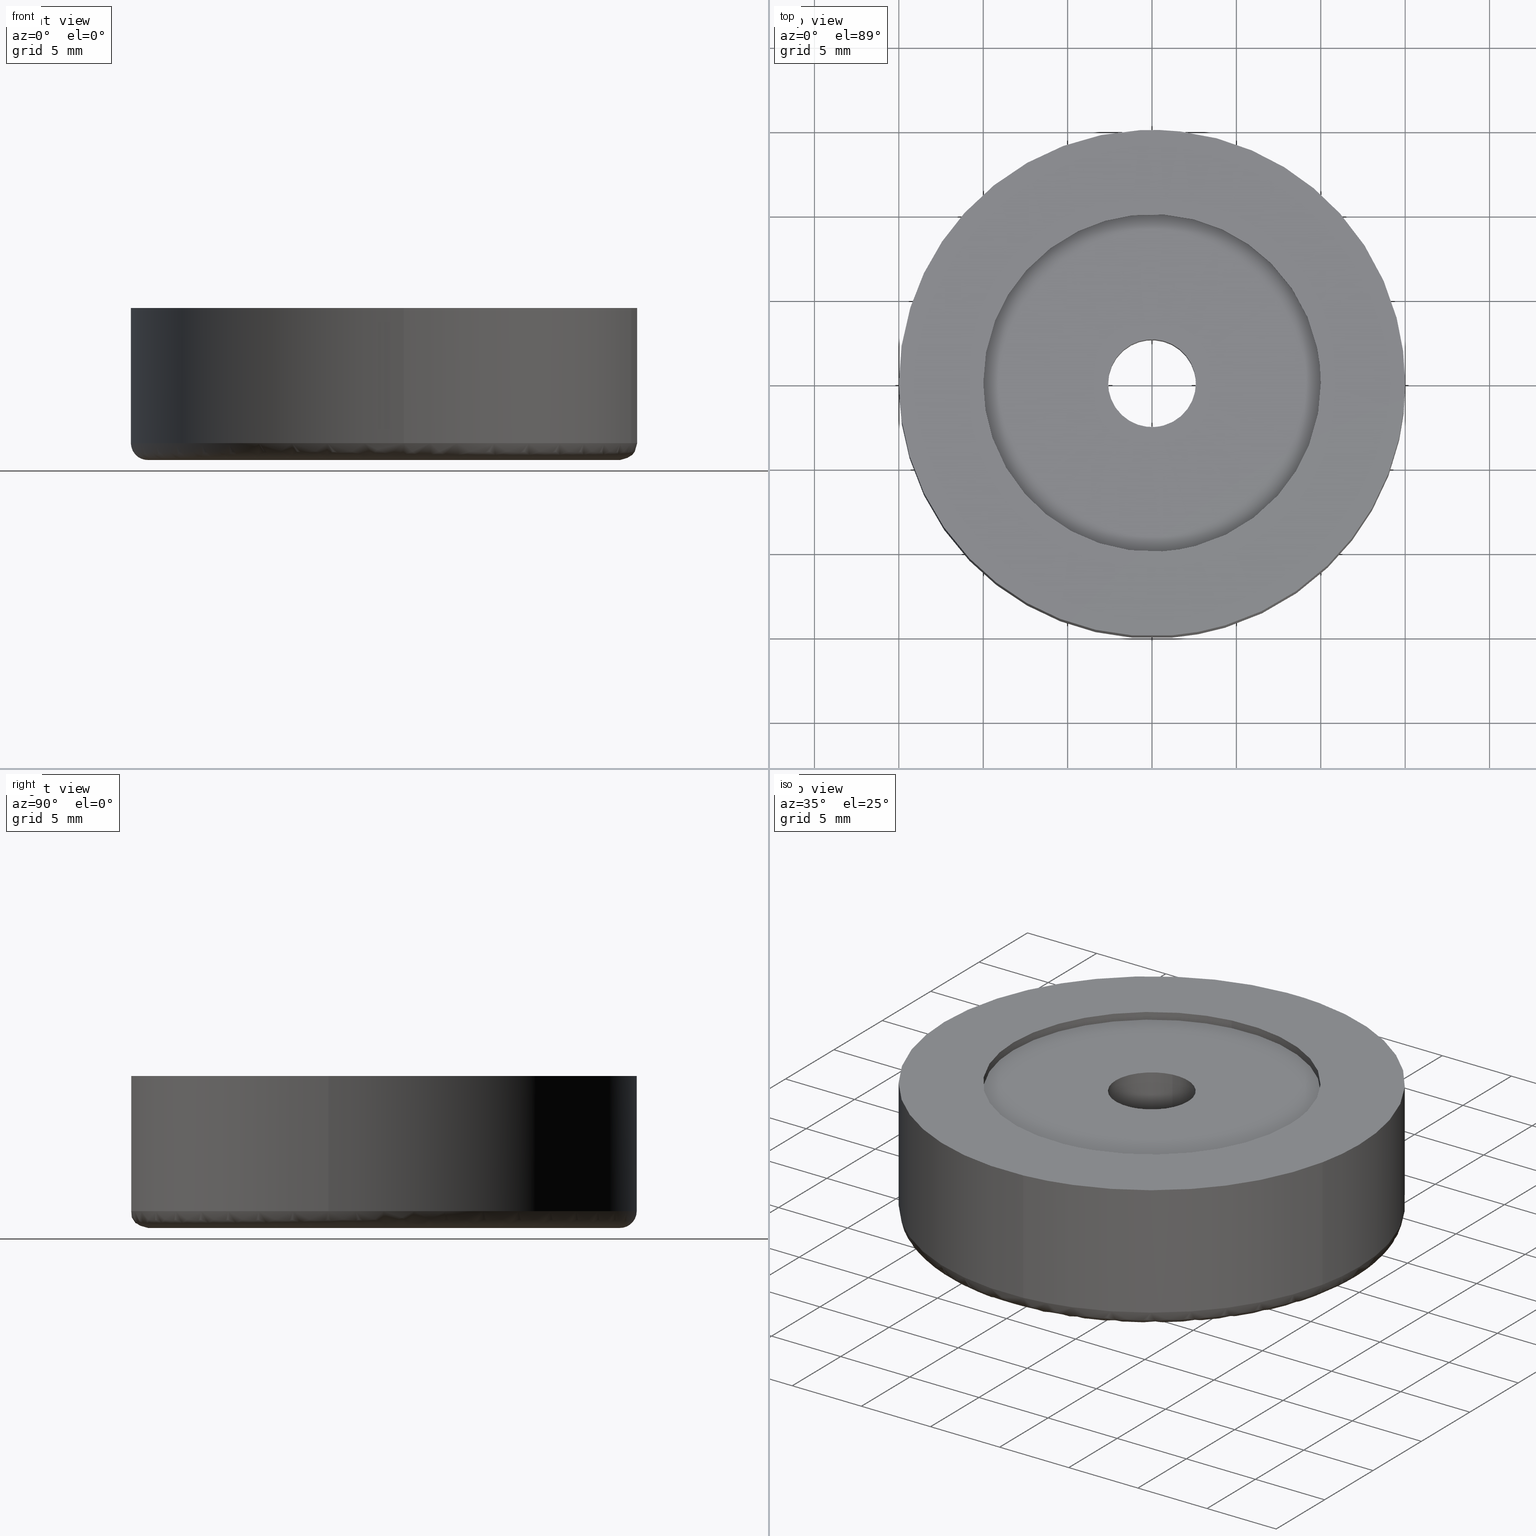
[diagram: canonical four-view strip — front | top / right | iso, engineering-drawing reading convention]
A machine part, canonical four-view strip (front | top / right | iso — engineering-drawing reading convention). The complete STEP part file that produces these views, byte-faithful:
ISO-10303-21;
HEADER;
/****************************************************************
 * Generated by software with PDE/Lib inside                    *
 * PDElib Version 4.4.1-0003, patched  Thursday August 19 11:58 *
 * International Technegroup Inc. (www.iti-oh.com)              *
 ****************************************************************/
FILE_DESCRIPTION((''),'2;1');
FILE_NAME('','2005-12-14T14:06:04',(''),(''),'','CADfix','');
FILE_SCHEMA(('AUTOMOTIVE_DESIGN'));
ENDSEC;
DATA;
#5=APPLICATION_CONTEXT('automotive design');
#6=APPLICATION_PROTOCOL_DEFINITION('Draft International Standard','automotive_design',1998,#5);
#7=PRODUCT_CONTEXT('None',#5,'mechanical');
#8=PRODUCT('rubber foot','','None',(#7));
#9=PRODUCT_RELATED_PRODUCT_CATEGORY('part','description',(#8));
#10=PRODUCT_DEFINITION_FORMATION('None','None',#8);
#11=PRODUCT_DEFINITION_CONTEXT('part definition',#5,'design');
#12=PRODUCT_DEFINITION('None','None',#10,#11);
#18=(NAMED_UNIT(*)PLANE_ANGLE_UNIT()SI_UNIT($,.RADIAN.));
#19=DIMENSIONAL_EXPONENTS(0.0,0.0,0.0,0.0,0.0,0.0,0.0);
#20=PLANE_ANGLE_MEASURE_WITH_UNIT(PLANE_ANGLE_MEASURE(0.017453292500000),#18);
#24=(CONVERSION_BASED_UNIT('DEGREE',#20)NAMED_UNIT(#19)PLANE_ANGLE_UNIT());
#28=(NAMED_UNIT(*)SI_UNIT($,.STERADIAN.)SOLID_ANGLE_UNIT());
#32=(LENGTH_UNIT()NAMED_UNIT(*)SI_UNIT(.MILLI.,.METRE.));
#34=UNCERTAINTY_MEASURE_WITH_UNIT(LENGTH_MEASURE(0.001000000000000),#32,'DISTANCE_ACCURACY_VALUE','');
#36=(GEOMETRIC_REPRESENTATION_CONTEXT(3)GLOBAL_UNCERTAINTY_ASSIGNED_CONTEXT((#34))GLOBAL_UNIT_ASSIGNED_CONTEXT((#24,#28,#32))REPRESENTATION_CONTEXT('None','None'));
#37=AXIS2_PLACEMENT_3D('',#38,#39,#40);
#38=CARTESIAN_POINT('',(0.0,0.0,0.0));
#39=DIRECTION('',(0.0,0.0,1.0));
#40=DIRECTION('',(1.0,0.0,0.0));
#41=ADVANCED_BREP_SHAPE_REPRESENTATION('',(#37,#1161),#36);
#42=PRODUCT_DEFINITION_SHAPE('','',#12);
#43=SHAPE_DEFINITION_REPRESENTATION(#42,#41);
#44=CARTESIAN_POINT('',(-2.989697942071856,-4.970081107504311,1.537499999999898));
#45=CARTESIAN_POINT('',(-5.547891259649319,-3.431227891319311,1.537499999999898));
#46=CARTESIAN_POINT('',(-5.782120535652139,-0.455062755221500,1.537499999999898));
#47=CARTESIAN_POINT('',(-6.237183290873639,5.327057780430638,1.537499999999898));
#48=CARTESIAN_POINT('',(-0.455062755221500,5.782120535652139,1.537499999999898));
#49=CARTESIAN_POINT('',(5.327057780430638,6.237183290873639,1.537499999999898));
#50=CARTESIAN_POINT('',(5.782120535652139,0.455062755221500,1.537499999999898));
#51=CARTESIAN_POINT('',(6.237183290873639,-5.327057780430638,1.537499999999898));
#52=CARTESIAN_POINT('',(0.455062755221500,-5.782120535652139,1.537499999999898));
#53=CARTESIAN_POINT('',(-7.322182632263916,-12.172414160706678,-0.038437499999997));
#54=CARTESIAN_POINT('',(-13.587550921261821,-8.403550378653588,-0.038437499999997));
#55=CARTESIAN_POINT('',(-14.161210725679080,-1.114511454814036,-0.038437499999997));
#56=CARTESIAN_POINT('',(-15.275722180493107,13.046699270865039,-0.038437499999997));
#57=CARTESIAN_POINT('',(-1.114511454814036,14.161210725679080,-0.038437499999997));
#58=CARTESIAN_POINT('',(13.046699270865039,15.275722180493107,-0.038437499999997));
#59=CARTESIAN_POINT('',(14.161210725679080,1.114511454814036,-0.038437499999997));
#60=CARTESIAN_POINT('',(15.275722180493107,-13.046699270865039,-0.038437499999997));
#61=CARTESIAN_POINT('',(1.114511454814036,-14.161210725679080,-0.038437499999997));
#69=(BOUNDED_SURFACE()B_SPLINE_SURFACE(2,1,((#44,#53),(#45,#54),(#46,#55),(#47,#56),(#48,#57),(#49,#58),(#50,#59),(#51,#60),(#52,#61)),.UNSPECIFIED.,.F.,.F.,.U.)B_SPLINE_SURFACE_WITH_KNOTS((3,2,2,2,3),(2,2),(0.0,14.121368768423549,37.656983382462798,61.192597996502052,84.728212610541306),(0.0,8.551467944388604),.UNSPECIFIED.)GEOMETRIC_REPRESENTATION_ITEM()RATIONAL_B_SPLINE_SURFACE(((0.859411254969543,0.859411254969543),(0.824264068711928,0.824264068711928),(1.0,1.0),(0.707106781186548,0.707106781186548),(1.0,1.0),(0.707106781186548,0.707106781186548),(1.0,1.0),(0.707106781186548,0.707106781186548),(1.0,1.0)))REPRESENTATION_ITEM('')SURFACE());
#70=CARTESIAN_POINT('',(-7.216511091337301,-11.996745991237420,0.000000356857896));
#71=VERTEX_POINT('',#70);
#72=CARTESIAN_POINT('',(-13.995578650399141,-0.351821336239177,1.874299E-016));
#73=VERTEX_POINT('',#72);
#74=CARTESIAN_POINT('',(-7.216511091337301,-11.996745991237422,0.000000356857896));
#75=CARTESIAN_POINT('',(-13.802436730045450,-8.035055702131242,0.000000178428948));
#76=CARTESIAN_POINT('',(-13.995578650399141,-0.351821336239177,1.874299E-016));
#84=(BOUNDED_CURVE()B_SPLINE_CURVE(2,(#74,#75,#76),.UNSPECIFIED.,.F.,.U.)B_SPLINE_CURVE_WITH_KNOTS((3,3),(0.838022801736637,0.995579891769269),.UNSPECIFIED.)CURVE()GEOMETRIC_REPRESENTATION_ITEM()RATIONAL_B_SPLINE_CURVE((0.866368646969517,0.811763793235545,0.989826157680359))REPRESENTATION_ITEM(''));
#85=EDGE_CURVE('',#71,#73,#84,.T.);
#86=ORIENTED_EDGE('',*,*,#85,.T.);
#87=CARTESIAN_POINT('',(-14.0,0.0,0.0));
#88=VERTEX_POINT('',#87);
#89=CARTESIAN_POINT('',(-13.995578650399141,-0.351821336239177,1.874299E-016));
#90=CARTESIAN_POINT('',(-14.000000000000005,-0.175938449748880,0.0));
#91=CARTESIAN_POINT('',(-14.0,0.0,0.0));
#99=(BOUNDED_CURVE()B_SPLINE_CURVE(2,(#89,#90,#91),.UNSPECIFIED.,.F.,.U.)B_SPLINE_CURVE_WITH_KNOTS((3,3),(0.995579891769269,1.0),.UNSPECIFIED.)CURVE()GEOMETRIC_REPRESENTATION_ITEM()RATIONAL_B_SPLINE_CURVE((0.989826157680358,0.994821521091189,1.0))REPRESENTATION_ITEM(''));
#100=EDGE_CURVE('',#73,#88,#99,.T.);
#101=ORIENTED_EDGE('',*,*,#100,.T.);
#102=CARTESIAN_POINT('',(-0.351821336244475,13.995578650466770,1.874299E-016));
#103=VERTEX_POINT('',#102);
#104=CARTESIAN_POINT('',(-14.0,0.0,0.0));
#105=CARTESIAN_POINT('',(-14.0,13.652490266480006,0.0));
#106=CARTESIAN_POINT('',(-0.351821336244475,13.995578650466770,1.874299E-016));
#114=(BOUNDED_CURVE()B_SPLINE_CURVE(2,(#104,#105,#106),.UNSPECIFIED.,.F.,.U.)B_SPLINE_CURVE_WITH_KNOTS((3,3),(0.0,0.245579891769179),.UNSPECIFIED.)CURVE()GEOMETRIC_REPRESENTATION_ITEM()RATIONAL_B_SPLINE_CURVE((1.0,0.712285260095464,0.989826157680155))REPRESENTATION_ITEM(''));
#115=EDGE_CURVE('',#88,#103,#114,.T.);
#116=ORIENTED_EDGE('',*,*,#115,.T.);
#117=CARTESIAN_POINT('',(14.0,0.0,0.0));
#118=VERTEX_POINT('',#117);
#119=CARTESIAN_POINT('',(-0.351821336244475,13.995578650466772,1.874299E-016));
#120=CARTESIAN_POINT('',(-0.175938449752476,13.999999999999998,0.0));
#121=CARTESIAN_POINT('',(0.0,14.0,0.0));
#122=CARTESIAN_POINT('',(13.999999999999998,13.999999999999998,0.0));
#123=CARTESIAN_POINT('',(14.0,0.0,0.0));
#131=(BOUNDED_CURVE()B_SPLINE_CURVE(2,(#119,#120,#121,#122,#123),.UNSPECIFIED.,.F.,.U.)B_SPLINE_CURVE_WITH_KNOTS((3,2,3),(0.245579891769179,0.250000000000000,0.500000000000000),.UNSPECIFIED.)CURVE()GEOMETRIC_REPRESENTATION_ITEM()RATIONAL_B_SPLINE_CURVE((0.989826157680155,0.994821521091084,1.0,0.707106781186547,1.0))REPRESENTATION_ITEM(''));
#132=EDGE_CURVE('',#103,#118,#131,.T.);
#133=ORIENTED_EDGE('',*,*,#132,.T.);
#134=CARTESIAN_POINT('',(1.098427340218535,-13.956842672265889,-8.160243E-013));
#135=VERTEX_POINT('',#134);
#136=CARTESIAN_POINT('',(14.0,0.0,0.0));
#137=CARTESIAN_POINT('',(14.000000000000004,-12.941466883162205,0.0));
#138=CARTESIAN_POINT('',(1.098427340218535,-13.956842672265889,-8.160243E-013));
#146=(BOUNDED_CURVE()B_SPLINE_CURVE(2,(#136,#137,#138),.UNSPECIFIED.,.F.,.U.)B_SPLINE_CURVE_WITH_KNOTS((3,3),(0.500000000000000,0.736331300632071),.UNSPECIFIED.)CURVE()GEOMETRIC_REPRESENTATION_ITEM()RATIONAL_B_SPLINE_CURVE((1.0,0.723120658606012,0.969723356170363))REPRESENTATION_ITEM(''));
#147=EDGE_CURVE('',#118,#135,#146,.T.);
#148=ORIENTED_EDGE('',*,*,#147,.T.);
#149=CARTESIAN_POINT('',(0.470753693263366,-5.981502167027508,1.500000356033137));
#150=VERTEX_POINT('',#149);
#151=CARTESIAN_POINT('',(0.470753693263366,-5.981502167027508,1.500000356033137));
#152=CARTESIAN_POINT('',(1.098427340218535,-13.956842672265889,-8.160243E-013));
#153=QUASI_UNIFORM_CURVE('',1,(#151,#152),.UNSPECIFIED.,.F.,.U.);
#154=EDGE_CURVE('',#150,#135,#153,.T.);
#155=ORIENTED_EDGE('',*,*,#154,.F.);
#156=CARTESIAN_POINT('',(6.0,0.0,1.499999999999900));
#157=VERTEX_POINT('',#156);
#158=CARTESIAN_POINT('',(6.0,0.0,1.499999999999900));
#159=CARTESIAN_POINT('',(5.999999925509326,-5.546342684412841,1.500000178016519));
#160=CARTESIAN_POINT('',(0.470753693263366,-5.981502167027508,1.500000356033137));
#168=(BOUNDED_CURVE()B_SPLINE_CURVE(2,(#158,#159,#160),.UNSPECIFIED.,.F.,.U.)B_SPLINE_CURVE_WITH_KNOTS((3,3),(0.500000000000000,0.736331321614731),.UNSPECIFIED.)CURVE()GEOMETRIC_REPRESENTATION_ITEM()RATIONAL_B_SPLINE_CURVE((1.0,0.723120634023297,0.969723399959578))REPRESENTATION_ITEM(''));
#169=EDGE_CURVE('',#157,#150,#168,.T.);
#170=ORIENTED_EDGE('',*,*,#169,.F.);
#171=CARTESIAN_POINT('',(-0.708194922177014,5.958058404555227,1.499999999999903));
#172=VERTEX_POINT('',#171);
#173=CARTESIAN_POINT('',(-0.708194922177014,5.958058404555227,1.499999999999902));
#174=CARTESIAN_POINT('',(-0.355339419604000,6.000000000000001,1.499999999999901));
#175=CARTESIAN_POINT('',(0.0,6.0,1.499999999999900));
#176=CARTESIAN_POINT('',(6.0,6.0,1.499999999999901));
#177=CARTESIAN_POINT('',(6.0,0.0,1.499999999999900));
#185=(BOUNDED_CURVE()B_SPLINE_CURVE(2,(#173,#174,#175,#176,#177),.UNSPECIFIED.,.F.,.U.)B_SPLINE_CURVE_WITH_KNOTS((3,2,3),(0.229562770949563,0.250000000000000,0.500000000000000),.UNSPECIFIED.)CURVE()GEOMETRIC_REPRESENTATION_ITEM()RATIONAL_B_SPLINE_CURVE((0.956027337171368,0.976056296799159,1.0,0.707106781186548,1.0))REPRESENTATION_ITEM(''));
#186=EDGE_CURVE('',#172,#157,#185,.T.);
#187=ORIENTED_EDGE('',*,*,#186,.F.);
#188=CARTESIAN_POINT('',(-6.0,0.0,1.499999999999900));
#189=VERTEX_POINT('',#188);
#190=CARTESIAN_POINT('',(-6.0,0.0,1.499999999999900));
#191=CARTESIAN_POINT('',(-6.000000000000002,5.329056600487015,1.499999999999900));
#192=CARTESIAN_POINT('',(-0.708194922177014,5.958058404555227,1.499999999999902));
#200=(BOUNDED_CURVE()B_SPLINE_CURVE(2,(#190,#191,#192),.UNSPECIFIED.,.F.,.U.)B_SPLINE_CURVE_WITH_KNOTS((3,3),(0.0,0.229562770949563),.UNSPECIFIED.)CURVE()GEOMETRIC_REPRESENTATION_ITEM()RATIONAL_B_SPLINE_CURVE((1.0,0.731050484387389,0.956027337171368))REPRESENTATION_ITEM(''));
#201=EDGE_CURVE('',#189,#172,#200,.T.);
#202=ORIENTED_EDGE('',*,*,#201,.F.);
#203=CARTESIAN_POINT('',(-3.092790974559728,-5.141463214658250,1.499999999999868));
#204=VERTEX_POINT('',#203);
#205=CARTESIAN_POINT('',(-3.092790974559728,-5.141463214658251,1.499999999999867));
#206=CARTESIAN_POINT('',(-6.000000000000001,-3.392663415912824,1.499999999999901));
#207=CARTESIAN_POINT('',(-6.0,0.0,1.499999999999900));
#215=(BOUNDED_CURVE()B_SPLINE_CURVE(2,(#205,#206,#207),.UNSPECIFIED.,.F.,.U.)B_SPLINE_CURVE_WITH_KNOTS((3,3),(0.838022804310851,1.0),.UNSPECIFIED.)CURVE()GEOMETRIC_REPRESENTATION_ITEM()RATIONAL_B_SPLINE_CURVE((0.866368645185217,0.810231911120915,1.0))REPRESENTATION_ITEM(''));
#216=EDGE_CURVE('',#204,#189,#215,.T.);
#217=ORIENTED_EDGE('',*,*,#216,.F.);
#218=CARTESIAN_POINT('',(-3.092790974559728,-5.141463214658250,1.499999999999868));
#219=CARTESIAN_POINT('',(-7.216511091337301,-11.996745991237420,0.000000356857896));
#220=QUASI_UNIFORM_CURVE('',1,(#218,#219),.UNSPECIFIED.,.F.,.U.);
#221=EDGE_CURVE('',#204,#71,#220,.T.);
#222=ORIENTED_EDGE('',*,*,#221,.T.);
#223=EDGE_LOOP('',(#86,#101,#116,#133,#148,#155,#170,#187,#202,#217,#222));
#224=FACE_OUTER_BOUND('',#223,.T.);
#225=ADVANCED_FACE('',(#224),#69,.F.);
#226=CARTESIAN_POINT('',(0.455062755221500,-5.782120535652139,1.537499999999898));
#227=CARTESIAN_POINT('',(-1.397397069218705,-5.927912285659616,1.537499999999899));
#228=CARTESIAN_POINT('',(-2.989697942071856,-4.970081107504311,1.537499999999898));
#229=CARTESIAN_POINT('',(1.114511454814036,-14.161210725679080,-0.038437499999997));
#230=CARTESIAN_POINT('',(-3.422418166939953,-14.518274830654287,-0.038437499999997));
#231=CARTESIAN_POINT('',(-7.322182632263916,-12.172414160706678,-0.038437499999997));
#239=(BOUNDED_SURFACE()B_SPLINE_SURFACE(2,1,((#226,#229),(#227,#230),(#228,#231)),.UNSPECIFIED.,.F.,.F.,.U.)B_SPLINE_SURFACE_WITH_KNOTS((3,3),(2,2),(0.0,9.350077061404901),(0.0,8.551467944388604),.UNSPECIFIED.)GEOMETRIC_REPRESENTATION_ITEM()RATIONAL_B_SPLINE_SURFACE(((1.0,1.0),(0.882842712474619,0.882842712474619),(0.859411254969543,0.859411254969543)))REPRESENTATION_ITEM('')SURFACE());
#240=CARTESIAN_POINT('',(1.098427340218535,-13.956842672265898,-8.160243E-013));
#241=CARTESIAN_POINT('',(0.550061558266888,-13.999999900000478,0.000000021881227));
#242=CARTESIAN_POINT('',(0.000000121616795,-13.999999797788870,0.000000044245854));
#243=CARTESIAN_POINT('',(-3.886299779734846,-13.999999075642338,0.000000202256650));
#244=CARTESIAN_POINT('',(-7.216511091337301,-11.996745991237422,0.000000356857896));
#252=(BOUNDED_CURVE()B_SPLINE_CURVE(2,(#240,#241,#242,#243,#244),.UNSPECIFIED.,.F.,.U.)B_SPLINE_CURVE_WITH_KNOTS((3,2,3),(0.736331300632070,0.750000000000000,0.838022801736637),.UNSPECIFIED.)CURVE()GEOMETRIC_REPRESENTATION_ITEM()RATIONAL_B_SPLINE_CURVE((0.969723356170361,0.983986122580534,1.0,0.896874873081512,0.866368646969517))REPRESENTATION_ITEM(''));
#253=EDGE_CURVE('',#135,#71,#252,.T.);
#254=ORIENTED_EDGE('',*,*,#253,.T.);
#255=ORIENTED_EDGE('',*,*,#221,.F.);
#256=CARTESIAN_POINT('',(0.366289338826585,-5.988808906640648,1.499999999999910));
#257=VERTEX_POINT('',#256);
#258=CARTESIAN_POINT('',(0.366289338826585,-5.988808906640647,1.499999999999911));
#259=CARTESIAN_POINT('',(0.183315627938838,-6.0,1.499999999999900));
#260=CARTESIAN_POINT('',(0.0,-6.0,1.499999999999900));
#261=CARTESIAN_POINT('',(-1.665557341064682,-5.999999999999999,1.499999999999900));
#262=CARTESIAN_POINT('',(-3.092790974559728,-5.141463214658250,1.499999999999867));
#270=(BOUNDED_CURVE()B_SPLINE_CURVE(2,(#258,#259,#260,#261,#262),.UNSPECIFIED.,.F.,.U.)B_SPLINE_CURVE_WITH_KNOTS((3,2,3),(0.739333016937291,0.750000000000000,0.838022804310852),.UNSPECIFIED.)CURVE()GEOMETRIC_REPRESENTATION_ITEM()RATIONAL_B_SPLINE_CURVE((0.976072158895718,0.987502851982938,1.0,0.896874870065631,0.866368645185216))REPRESENTATION_ITEM(''));
#271=EDGE_CURVE('',#257,#204,#270,.T.);
#272=ORIENTED_EDGE('',*,*,#271,.F.);
#273=CARTESIAN_POINT('',(0.470753693263366,-5.981502167027508,1.500000356033137));
#274=CARTESIAN_POINT('',(0.418553390615721,-5.985611365871497,1.500000178016524));
#275=CARTESIAN_POINT('',(0.366289338826585,-5.988808906640647,1.499999999999911));
#283=(BOUNDED_CURVE()B_SPLINE_CURVE(2,(#273,#274,#275),.UNSPECIFIED.,.F.,.U.)B_SPLINE_CURVE_WITH_KNOTS((3,3),(0.736331321614731,0.739333016937291),.UNSPECIFIED.)CURVE()GEOMETRIC_REPRESENTATION_ITEM()RATIONAL_B_SPLINE_CURVE((0.969723399959579,0.972855555122016,0.976072158895718))REPRESENTATION_ITEM(''));
#284=EDGE_CURVE('',#150,#257,#283,.T.);
#285=ORIENTED_EDGE('',*,*,#284,.F.);
#286=ORIENTED_EDGE('',*,*,#154,.T.);
#287=EDGE_LOOP('',(#254,#255,#272,#285,#286));
#288=FACE_OUTER_BOUND('',#287,.T.);
#289=ADVANCED_FACE('',(#288),#239,.F.);
#290=CARTESIAN_POINT('',(-0.708205407940551,5.958057158181998,5.087500000000006));
#291=CARTESIAN_POINT('',(-0.537688371827866,5.978325692691634,5.087500000000005));
#292=CARTESIAN_POINT('',(-0.366291237209142,5.988808790531200,5.087500000000004));
#293=CARTESIAN_POINT('',(5.622517553322059,6.355100027740342,5.087500000000005));
#294=CARTESIAN_POINT('',(5.988808790531200,0.366291237209142,5.087500000000004));
#295=CARTESIAN_POINT('',(6.355100027740342,-5.622517553322059,5.087500000000005));
#296=CARTESIAN_POINT('',(0.366291237209142,-5.988808790531200,5.087500000000004));
#297=CARTESIAN_POINT('',(-0.708205407940551,5.958057158181998,1.410312499999897));
#298=CARTESIAN_POINT('',(-0.537688371827866,5.978325692691634,1.410312499999897));
#299=CARTESIAN_POINT('',(-0.366291237209142,5.988808790531200,1.410312499999897));
#300=CARTESIAN_POINT('',(5.622517553322059,6.355100027740342,1.410312499999897));
#301=CARTESIAN_POINT('',(5.988808790531200,0.366291237209142,1.410312499999897));
#302=CARTESIAN_POINT('',(6.355100027740342,-5.622517553322059,1.410312499999897));
#303=CARTESIAN_POINT('',(0.366291237209142,-5.988808790531200,1.410312499999897));
#311=(BOUNDED_SURFACE()B_SPLINE_SURFACE(2,1,((#290,#297),(#291,#298),(#292,#299),(#293,#300),(#294,#301),(#295,#302),(#296,#303)),.UNSPECIFIED.,.F.,.F.,.U.)B_SPLINE_SURFACE_WITH_KNOTS((3,2,2,3),(2,2),(0.0,0.397645019878172,10.338770516832451,20.279896013786729),(0.0,3.677187500000109),.UNSPECIFIED.)GEOMETRIC_REPRESENTATION_ITEM()RATIONAL_B_SPLINE_SURFACE(((0.977505800795127,0.977505800795127),(0.988284271247462,0.988284271247462),(1.0,1.0),(0.707106781186548,0.707106781186548),(1.0,1.0),(0.707106781186548,0.707106781186548),(1.0,1.0)))REPRESENTATION_ITEM('')SURFACE());
#312=ORIENTED_EDGE('',*,*,#186,.T.);
#313=ORIENTED_EDGE('',*,*,#169,.T.);
#314=ORIENTED_EDGE('',*,*,#284,.T.);
#315=CARTESIAN_POINT('',(0.366289362214313,-5.988808905210208,5.0));
#316=VERTEX_POINT('',#315);
#317=CARTESIAN_POINT('',(0.366289362214313,-5.988808905210208,5.0));
#318=CARTESIAN_POINT('',(0.366289338826585,-5.988808906640648,1.499999999999910));
#319=QUASI_UNIFORM_CURVE('',1,(#317,#318),.UNSPECIFIED.,.F.,.U.);
#320=EDGE_CURVE('',#316,#257,#319,.T.);
#321=ORIENTED_EDGE('',*,*,#320,.F.);
#322=CARTESIAN_POINT('',(6.0,0.0,5.0));
#323=VERTEX_POINT('',#322);
#324=CARTESIAN_POINT('',(6.0,0.0,5.0));
#325=CARTESIAN_POINT('',(5.999999999999999,-5.644238171851620,5.000000000000001));
#326=CARTESIAN_POINT('',(0.366289362214313,-5.988808905210209,5.0));
#334=(BOUNDED_CURVE()B_SPLINE_CURVE(2,(#324,#325,#326),.UNSPECIFIED.,.F.,.U.)B_SPLINE_CURVE_WITH_KNOTS((3,3),(0.500000000000000,0.739333016263455),.UNSPECIFIED.)CURVE()GEOMETRIC_REPRESENTATION_ITEM()RATIONAL_B_SPLINE_CURVE((1.0,0.719603929993058,0.976072157451558))REPRESENTATION_ITEM(''));
#335=EDGE_CURVE('',#323,#316,#334,.T.);
#336=ORIENTED_EDGE('',*,*,#335,.F.);
#337=CARTESIAN_POINT('',(-0.708195051552524,5.958058389177445,5.0));
#338=VERTEX_POINT('',#337);
#339=CARTESIAN_POINT('',(-0.708195051552524,5.958058389177445,5.0));
#340=CARTESIAN_POINT('',(-0.355339484975592,5.999999999999999,5.0));
#341=CARTESIAN_POINT('',(0.0,6.0,5.0));
#342=CARTESIAN_POINT('',(6.0,6.0,5.000000000000001));
#343=CARTESIAN_POINT('',(6.0,0.0,5.0));
#351=(BOUNDED_CURVE()B_SPLINE_CURVE(2,(#339,#340,#341,#342,#343),.UNSPECIFIED.,.F.,.U.)B_SPLINE_CURVE_WITH_KNOTS((3,2,3),(0.229562767279762,0.250000000000000,0.500000000000000),.UNSPECIFIED.)CURVE()GEOMETRIC_REPRESENTATION_ITEM()RATIONAL_B_SPLINE_CURVE((0.956027329978387,0.976056292499719,1.0,0.707106781186548,1.0))REPRESENTATION_ITEM(''));
#352=EDGE_CURVE('',#338,#323,#351,.T.);
#353=ORIENTED_EDGE('',*,*,#352,.F.);
#354=CARTESIAN_POINT('',(-0.708195051552524,5.958058389177445,5.0));
#355=CARTESIAN_POINT('',(-0.708194922177014,5.958058404555227,1.499999999999903));
#356=QUASI_UNIFORM_CURVE('',1,(#354,#355),.UNSPECIFIED.,.F.,.U.);
#357=EDGE_CURVE('',#338,#172,#356,.T.);
#358=ORIENTED_EDGE('',*,*,#357,.T.);
#359=EDGE_LOOP('',(#312,#313,#314,#321,#336,#353,#358));
#360=FACE_OUTER_BOUND('',#359,.T.);
#361=ADVANCED_FACE('',(#360),#311,.F.);
#362=CARTESIAN_POINT('',(0.448816315883788,-5.983761340491331,5.087500000000003));
#363=CARTESIAN_POINT('',(0.407671873033278,-5.986277842420705,5.087500000000005));
#364=CARTESIAN_POINT('',(-5.622517553322059,-6.355100027740342,5.087500000000005));
#365=CARTESIAN_POINT('',(-5.988808790531200,-0.366291237209142,5.087500000000004));
#366=CARTESIAN_POINT('',(-6.334717180395164,5.289260945037006,5.087500000000004));
#367=CARTESIAN_POINT('',(-0.666076644850181,5.963064800280476,5.087500000000006));
#368=CARTESIAN_POINT('',(-0.624174307728721,5.968045528220290,5.087500000000006));
#369=CARTESIAN_POINT('',(0.448816315883788,-5.983761340491331,1.410312499999896));
#370=CARTESIAN_POINT('',(0.407671873033278,-5.986277842420705,1.410312499999897));
#371=CARTESIAN_POINT('',(-5.622517553322059,-6.355100027740342,1.410312499999897));
#372=CARTESIAN_POINT('',(-5.988808790531200,-0.366291237209142,1.410312499999897));
#373=CARTESIAN_POINT('',(-6.334717180395164,5.289260945037006,1.410312499999897));
#374=CARTESIAN_POINT('',(-0.666076644850181,5.963064800280476,1.410312499999897));
#375=CARTESIAN_POINT('',(-0.624174307728721,5.968045528220290,1.410312499999897));
#383=(BOUNDED_SURFACE()B_SPLINE_SURFACE(2,1,((#362,#369),(#363,#370),(#364,#371),(#365,#372),(#366,#373),(#367,#374),(#368,#375)),.UNSPECIFIED.,.F.,.F.,.U.)B_SPLINE_SURFACE_WITH_KNOTS((3,1,2,1,3),(2,2),(0.0,0.097420876355919,10.038546373310201,19.582026850386310,19.679462020572409),(0.0,3.677187500000109),.UNSPECIFIED.)GEOMETRIC_REPRESENTATION_ITEM()RATIONAL_B_SPLINE_SURFACE(((1.005740580191701,1.005740580191701),(1.002870290095850,1.002870290095850),(0.707106781186548,0.707106781186548),(1.0,1.0),(0.718822509939086,0.718822509939086),(0.980146855128439,0.980146855128439),(0.982787909461751,0.982787909461751)))REPRESENTATION_ITEM('')SURFACE());
#384=ORIENTED_EDGE('',*,*,#201,.T.);
#385=ORIENTED_EDGE('',*,*,#357,.F.);
#386=CARTESIAN_POINT('',(-6.0,0.0,5.0));
#387=VERTEX_POINT('',#386);
#388=CARTESIAN_POINT('',(-6.0,0.0,5.0));
#389=CARTESIAN_POINT('',(-6.000000000000001,5.329056483955323,4.999999999999999));
#390=CARTESIAN_POINT('',(-0.708195051552524,5.958058389177445,5.0));
#398=(BOUNDED_CURVE()B_SPLINE_CURVE(2,(#388,#389,#390),.UNSPECIFIED.,.F.,.U.)B_SPLINE_CURVE_WITH_KNOTS((3,3),(0.0,0.229562767279762),.UNSPECIFIED.)CURVE()GEOMETRIC_REPRESENTATION_ITEM()RATIONAL_B_SPLINE_CURVE((1.0,0.731050488686828,0.956027329978387))REPRESENTATION_ITEM(''));
#399=EDGE_CURVE('',#387,#338,#398,.T.);
#400=ORIENTED_EDGE('',*,*,#399,.F.);
#401=CARTESIAN_POINT('',(0.366289362214313,-5.988808905210209,5.0));
#402=CARTESIAN_POINT('',(0.183315639665489,-6.0,5.0));
#403=CARTESIAN_POINT('',(0.0,-6.0,5.0));
#404=CARTESIAN_POINT('',(-6.0,-6.0,5.000000000000001));
#405=CARTESIAN_POINT('',(-6.0,0.0,5.0));
#413=(BOUNDED_CURVE()B_SPLINE_CURVE(2,(#401,#402,#403,#404,#405),.UNSPECIFIED.,.F.,.U.)B_SPLINE_CURVE_WITH_KNOTS((3,2,3),(0.739333016263455,0.750000000000000,1.0),.UNSPECIFIED.)CURVE()GEOMETRIC_REPRESENTATION_ITEM()RATIONAL_B_SPLINE_CURVE((0.976072157451558,0.987502851193490,1.0,0.707106781186548,1.0))REPRESENTATION_ITEM(''));
#414=EDGE_CURVE('',#316,#387,#413,.T.);
#415=ORIENTED_EDGE('',*,*,#414,.F.);
#416=ORIENTED_EDGE('',*,*,#320,.T.);
#417=ORIENTED_EDGE('',*,*,#271,.T.);
#418=ORIENTED_EDGE('',*,*,#216,.T.);
#419=EDGE_LOOP('',(#384,#385,#400,#415,#416,#417,#418));
#420=FACE_OUTER_BOUND('',#419,.T.);
#421=ADVANCED_FACE('',(#420),#383,.F.);
#422=CARTESIAN_POINT('',(-0.306889010107572,2.581824768545533,8.587500000000002));
#423=CARTESIAN_POINT('',(-0.232998294458742,2.590607800166375,8.587500000000002));
#424=CARTESIAN_POINT('',(-0.158726202790628,2.595150475896853,8.587500000000002));
#425=CARTESIAN_POINT('',(2.436424273106225,2.753876678687481,8.587500000000002));
#426=CARTESIAN_POINT('',(2.595150475896853,0.158726202790628,8.587500000000002));
#427=CARTESIAN_POINT('',(2.753876678687481,-2.436424273106225,8.587500000000002));
#428=CARTESIAN_POINT('',(0.158726202790628,-2.595150475896853,8.587500000000002));
#429=CARTESIAN_POINT('',(-0.306889010107572,2.581824768545533,4.910312499999999));
#430=CARTESIAN_POINT('',(-0.232998294458742,2.590607800166375,4.910312499999999));
#431=CARTESIAN_POINT('',(-0.158726202790628,2.595150475896853,4.910312499999999));
#432=CARTESIAN_POINT('',(2.436424273106225,2.753876678687481,4.910312500000000));
#433=CARTESIAN_POINT('',(2.595150475896853,0.158726202790628,4.910312499999999));
#434=CARTESIAN_POINT('',(2.753876678687481,-2.436424273106225,4.910312500000000));
#435=CARTESIAN_POINT('',(0.158726202790628,-2.595150475896853,4.910312499999999));
#443=(BOUNDED_SURFACE()B_SPLINE_SURFACE(2,1,((#422,#429),(#423,#430),(#424,#431),(#425,#432),(#426,#433),(#427,#434),(#428,#435)),.UNSPECIFIED.,.F.,.F.,.U.)B_SPLINE_SURFACE_WITH_KNOTS((3,2,2,3),(2,2),(0.0,0.172312841947208,4.480133890627395,8.787954939307582),(0.0,3.677187500000003),.UNSPECIFIED.)GEOMETRIC_REPRESENTATION_ITEM()RATIONAL_B_SPLINE_SURFACE(((0.977505800795127,0.977505800795127),(0.988284271247462,0.988284271247462),(1.0,1.0),(0.707106781186548,0.707106781186548),(1.0,1.0),(0.707106781186548,0.707106781186548),(1.0,1.0)))REPRESENTATION_ITEM('')SURFACE());
#444=CARTESIAN_POINT('',(-0.306886087264373,2.581825115966397,4.999999999999961));
#445=VERTEX_POINT('',#444);
#446=CARTESIAN_POINT('',(2.600000000000000,0.0,5.0));
#447=VERTEX_POINT('',#446);
#448=CARTESIAN_POINT('',(-0.306886087264373,2.581825115966398,4.999999999999961));
#449=CARTESIAN_POINT('',(-0.153981234223653,2.600000000000000,5.000000000000001));
#450=CARTESIAN_POINT('',(0.0,2.600000000000000,5.0));
#451=CARTESIAN_POINT('',(2.600000000000001,2.600000000000001,5.000000000000001));
#452=CARTESIAN_POINT('',(2.600000000000000,0.0,5.0));
#460=(BOUNDED_CURVE()B_SPLINE_CURVE(2,(#448,#449,#450,#451,#452),.UNSPECIFIED.,.F.,.U.)B_SPLINE_CURVE_WITH_KNOTS((3,2,3),(0.229562664841577,0.250000000000000,0.500000000000000),.UNSPECIFIED.)CURVE()GEOMETRIC_REPRESENTATION_ITEM()RATIONAL_B_SPLINE_CURVE((0.956027129194886,0.976056172485920,1.0,0.707106781186548,1.0))REPRESENTATION_ITEM(''));
#461=EDGE_CURVE('',#445,#447,#460,.T.);
#462=ORIENTED_EDGE('',*,*,#461,.T.);
#463=CARTESIAN_POINT('',(0.158726202832254,-2.595150475894308,5.0));
#464=VERTEX_POINT('',#463);
#465=CARTESIAN_POINT('',(2.600000000000000,0.0,5.0));
#466=CARTESIAN_POINT('',(2.600000000000001,-2.445835773876209,4.999999999999999));
#467=CARTESIAN_POINT('',(0.158726202832254,-2.595150475894308,5.0));
#475=(BOUNDED_CURVE()B_SPLINE_CURVE(2,(#465,#466,#467),.UNSPECIFIED.,.F.,.U.)B_SPLINE_CURVE_WITH_KNOTS((3,3),(0.500000000000000,0.739332962236434),.UNSPECIFIED.)CURVE()GEOMETRIC_REPRESENTATION_ITEM()RATIONAL_B_SPLINE_CURVE((1.0,0.719603993289650,0.976072041661340))REPRESENTATION_ITEM(''));
#476=EDGE_CURVE('',#447,#464,#475,.T.);
#477=ORIENTED_EDGE('',*,*,#476,.T.);
#478=CARTESIAN_POINT('',(0.158726202832255,-2.595150475894308,8.500000000000000));
#479=VERTEX_POINT('',#478);
#480=CARTESIAN_POINT('',(0.158726202832255,-2.595150475894308,8.500000000000000));
#481=CARTESIAN_POINT('',(0.158726202832254,-2.595150475894308,5.0));
#482=QUASI_UNIFORM_CURVE('',1,(#480,#481),.UNSPECIFIED.,.F.,.U.);
#483=EDGE_CURVE('',#479,#464,#482,.T.);
#484=ORIENTED_EDGE('',*,*,#483,.F.);
#485=CARTESIAN_POINT('',(2.600000000000000,0.0,8.500000000000000));
#486=VERTEX_POINT('',#485);
#487=CARTESIAN_POINT('',(2.600000000000000,0.0,8.500000000000000));
#488=CARTESIAN_POINT('',(2.600000000000001,-2.445835773876209,8.500000000000000));
#489=CARTESIAN_POINT('',(0.158726202832255,-2.595150475894308,8.500000000000000));
#497=(BOUNDED_CURVE()B_SPLINE_CURVE(2,(#487,#488,#489),.UNSPECIFIED.,.F.,.U.)B_SPLINE_CURVE_WITH_KNOTS((3,3),(0.500000000000000,0.739332962236434),.UNSPECIFIED.)CURVE()GEOMETRIC_REPRESENTATION_ITEM()RATIONAL_B_SPLINE_CURVE((1.0,0.719603993289650,0.976072041661340))REPRESENTATION_ITEM(''));
#498=EDGE_CURVE('',#486,#479,#497,.T.);
#499=ORIENTED_EDGE('',*,*,#498,.F.);
#500=CARTESIAN_POINT('',(-0.306886123398112,2.581825111671437,8.500000000000002));
#501=VERTEX_POINT('',#500);
#502=CARTESIAN_POINT('',(-0.306886123398112,2.581825111671437,8.500000000000002));
#503=CARTESIAN_POINT('',(-0.153981252481516,2.600000000000000,8.499999999999998));
#504=CARTESIAN_POINT('',(0.0,2.600000000000000,8.500000000000000));
#505=CARTESIAN_POINT('',(2.600000000000001,2.600000000000001,8.500000000000002));
#506=CARTESIAN_POINT('',(2.600000000000000,0.0,8.500000000000000));
#514=(BOUNDED_CURVE()B_SPLINE_CURVE(2,(#502,#503,#504,#505,#506),.UNSPECIFIED.,.F.,.U.)B_SPLINE_CURVE_WITH_KNOTS((3,2,3),(0.229562662476304,0.250000000000000,0.500000000000000),.UNSPECIFIED.)CURVE()GEOMETRIC_REPRESENTATION_ITEM()RATIONAL_B_SPLINE_CURVE((0.956027124558846,0.976056169714831,1.0,0.707106781186548,1.0))REPRESENTATION_ITEM(''));
#515=EDGE_CURVE('',#501,#486,#514,.T.);
#516=ORIENTED_EDGE('',*,*,#515,.F.);
#517=CARTESIAN_POINT('',(-0.306886123398112,2.581825111671437,8.500000000000002));
#518=CARTESIAN_POINT('',(-0.306886087264373,2.581825115966397,4.999999999999961));
#519=QUASI_UNIFORM_CURVE('',1,(#517,#518),.UNSPECIFIED.,.F.,.U.);
#520=EDGE_CURVE('',#501,#445,#519,.T.);
#521=ORIENTED_EDGE('',*,*,#520,.T.);
#522=EDGE_LOOP('',(#462,#477,#484,#499,#516,#521));
#523=FACE_OUTER_BOUND('',#522,.T.);
#524=ADVANCED_FACE('',(#523),#443,.F.);
#525=CARTESIAN_POINT('',(0.158726202790628,-2.595150475896853,8.587500000000002));
#526=CARTESIAN_POINT('',(-2.436424273106225,-2.753876678687481,8.587500000000002));
#527=CARTESIAN_POINT('',(-2.595150475896853,-0.158726202790628,8.587500000000002));
#528=CARTESIAN_POINT('',(-2.745044111504571,2.292013076182702,8.587500000000002));
#529=CARTESIAN_POINT('',(-0.306889010107572,2.581824768545533,8.587500000000002));
#530=CARTESIAN_POINT('',(0.158726202790628,-2.595150475896853,4.910312499999999));
#531=CARTESIAN_POINT('',(-2.436424273106225,-2.753876678687481,4.910312500000000));
#532=CARTESIAN_POINT('',(-2.595150475896853,-0.158726202790628,4.910312499999999));
#533=CARTESIAN_POINT('',(-2.745044111504571,2.292013076182702,4.910312499999999));
#534=CARTESIAN_POINT('',(-0.306889010107572,2.581824768545533,4.910312499999999));
#542=(BOUNDED_SURFACE()B_SPLINE_SURFACE(2,1,((#525,#530),(#526,#531),(#527,#532),(#528,#533),(#529,#534)),.UNSPECIFIED.,.F.,.F.,.U.)B_SPLINE_SURFACE_WITH_KNOTS((3,2,3),(2,2),(0.0,4.307821048680188,8.443329255413167),(0.0,3.677187500000004),.UNSPECIFIED.)GEOMETRIC_REPRESENTATION_ITEM()RATIONAL_B_SPLINE_SURFACE(((1.0,1.0),(0.707106781186548,0.707106781186548),(1.0,1.0),(0.718822509939086,0.718822509939086),(0.977505800795127,0.977505800795127)))REPRESENTATION_ITEM('')SURFACE());
#543=CARTESIAN_POINT('',(-2.600000000000000,0.0,5.0));
#544=VERTEX_POINT('',#543);
#545=CARTESIAN_POINT('',(-2.600000000000000,0.0,5.0));
#546=CARTESIAN_POINT('',(-2.600000000000001,2.309256400148017,5.000000000000001));
#547=CARTESIAN_POINT('',(-0.306886087264373,2.581825115966398,4.999999999999961));
#555=(BOUNDED_CURVE()B_SPLINE_CURVE(2,(#545,#546,#547),.UNSPECIFIED.,.F.,.U.)B_SPLINE_CURVE_WITH_KNOTS((3,3),(0.0,0.229562664841577),.UNSPECIFIED.)CURVE()GEOMETRIC_REPRESENTATION_ITEM()RATIONAL_B_SPLINE_CURVE((1.0,0.731050608700628,0.956027129194886))REPRESENTATION_ITEM(''));
#556=EDGE_CURVE('',#544,#445,#555,.T.);
#557=ORIENTED_EDGE('',*,*,#556,.T.);
#558=ORIENTED_EDGE('',*,*,#520,.F.);
#559=CARTESIAN_POINT('',(-2.600000000000000,0.0,8.500000000000000));
#560=VERTEX_POINT('',#559);
#561=CARTESIAN_POINT('',(-2.600000000000000,0.0,8.500000000000000));
#562=CARTESIAN_POINT('',(-2.600000000000000,2.309256367601487,8.500000000000000));
#563=CARTESIAN_POINT('',(-0.306886123398112,2.581825111671437,8.500000000000002));
#571=(BOUNDED_CURVE()B_SPLINE_CURVE(2,(#561,#562,#563),.UNSPECIFIED.,.F.,.U.)B_SPLINE_CURVE_WITH_KNOTS((3,3),(0.0,0.229562662476304),.UNSPECIFIED.)CURVE()GEOMETRIC_REPRESENTATION_ITEM()RATIONAL_B_SPLINE_CURVE((1.0,0.731050611471717,0.956027124558846))REPRESENTATION_ITEM(''));
#572=EDGE_CURVE('',#560,#501,#571,.T.);
#573=ORIENTED_EDGE('',*,*,#572,.F.);
#574=CARTESIAN_POINT('',(0.158726202832255,-2.595150475894308,8.500000000000000));
#575=CARTESIAN_POINT('',(0.079437184618074,-2.600000000000000,8.500000000000000));
#576=CARTESIAN_POINT('',(0.0,-2.600000000000000,8.500000000000000));
#577=CARTESIAN_POINT('',(-2.600000000000001,-2.600000000000001,8.500000000000002));
#578=CARTESIAN_POINT('',(-2.600000000000000,0.0,8.500000000000000));
#586=(BOUNDED_CURVE()B_SPLINE_CURVE(2,(#574,#575,#576,#577,#578),.UNSPECIFIED.,.F.,.U.)B_SPLINE_CURVE_WITH_KNOTS((3,2,3),(0.739332962236433,0.750000000000000,1.0),.UNSPECIFIED.)CURVE()GEOMETRIC_REPRESENTATION_ITEM()RATIONAL_B_SPLINE_CURVE((0.976072041661338,0.987502787896897,1.0,0.707106781186548,1.0))REPRESENTATION_ITEM(''));
#587=EDGE_CURVE('',#479,#560,#586,.T.);
#588=ORIENTED_EDGE('',*,*,#587,.F.);
#589=ORIENTED_EDGE('',*,*,#483,.T.);
#590=CARTESIAN_POINT('',(0.158726202832254,-2.595150475894307,5.0));
#591=CARTESIAN_POINT('',(0.079437184618073,-2.600000000000000,5.0));
#592=CARTESIAN_POINT('',(0.0,-2.600000000000000,5.0));
#593=CARTESIAN_POINT('',(-2.600000000000001,-2.600000000000001,5.000000000000001));
#594=CARTESIAN_POINT('',(-2.600000000000000,0.0,5.0));
#602=(BOUNDED_CURVE()B_SPLINE_CURVE(2,(#590,#591,#592,#593,#594),.UNSPECIFIED.,.F.,.U.)B_SPLINE_CURVE_WITH_KNOTS((3,2,3),(0.739332962236433,0.750000000000000,1.0),.UNSPECIFIED.)CURVE()GEOMETRIC_REPRESENTATION_ITEM()RATIONAL_B_SPLINE_CURVE((0.976072041661339,0.987502787896897,1.0,0.707106781186548,1.0))REPRESENTATION_ITEM(''));
#603=EDGE_CURVE('',#464,#544,#602,.T.);
#604=ORIENTED_EDGE('',*,*,#603,.T.);
#605=EDGE_LOOP('',(#557,#558,#573,#588,#589,#604));
#606=FACE_OUTER_BOUND('',#605,.T.);
#607=ADVANCED_FACE('',(#606),#542,.F.);
#608=CARTESIAN_POINT('',(-1.180342346567585,9.930095263636664,9.012500000000001));
#609=CARTESIAN_POINT('',(-0.896147286379777,9.963876154486057,9.012500000000001));
#610=CARTESIAN_POINT('',(-0.610485395348570,9.981347984218667,9.012500000000001));
#611=CARTESIAN_POINT('',(9.370862588870097,10.591833379567237,9.012500000000001));
#612=CARTESIAN_POINT('',(9.981347984218667,0.610485395348570,9.012500000000001));
#613=CARTESIAN_POINT('',(10.591833379567237,-9.370862588870097,9.012500000000001));
#614=CARTESIAN_POINT('',(0.610485395348570,-9.981347984218667,9.012500000000001));
#615=CARTESIAN_POINT('',(-1.180342346567585,9.930095263636664,8.487187499999996));
#616=CARTESIAN_POINT('',(-0.896147286379777,9.963876154486057,8.487187499999997));
#617=CARTESIAN_POINT('',(-0.610485395348570,9.981347984218667,8.487187499999997));
#618=CARTESIAN_POINT('',(9.370862588870097,10.591833379567237,8.487187499999997));
#619=CARTESIAN_POINT('',(9.981347984218667,0.610485395348570,8.487187499999997));
#620=CARTESIAN_POINT('',(10.591833379567237,-9.370862588870097,8.487187499999997));
#621=CARTESIAN_POINT('',(0.610485395348570,-9.981347984218667,8.487187499999997));
#629=(BOUNDED_SURFACE()B_SPLINE_SURFACE(2,1,((#608,#615),(#609,#616),(#610,#617),(#611,#618),(#612,#619),(#613,#620),(#614,#621)),.UNSPECIFIED.,.F.,.F.,.U.)B_SPLINE_SURFACE_WITH_KNOTS((3,2,2,3),(2,2),(0.0,0.662741699796953,17.231284194720750,33.799826689644547),(0.0,1.0),.UNSPECIFIED.)GEOMETRIC_REPRESENTATION_ITEM()RATIONAL_B_SPLINE_SURFACE(((0.977505800795127,0.977505800795127),(0.988284271247462,0.988284271247462),(1.0,1.0),(0.707106781186548,0.707106781186548),(1.0,1.0),(0.707106781186548,0.707106781186548),(1.0,1.0)))REPRESENTATION_ITEM('')SURFACE());
#630=CARTESIAN_POINT('',(-1.180332153544785,9.930096475221321,8.500000000000345));
#631=VERTEX_POINT('',#630);
#632=CARTESIAN_POINT('',(10.0,0.0,8.500000000000000));
#633=VERTEX_POINT('',#632);
#634=CARTESIAN_POINT('',(-1.180332153544785,9.930096475221321,8.500000000000345));
#635=CARTESIAN_POINT('',(-0.592236046128818,10.000000000000002,8.500000000000000));
#636=CARTESIAN_POINT('',(0.0,10.0,8.500000000000000));
#637=CARTESIAN_POINT('',(10.000000000000002,10.000000000000002,8.500000000000002));
#638=CARTESIAN_POINT('',(10.0,0.0,8.500000000000000));
#646=(BOUNDED_CURVE()B_SPLINE_CURVE(2,(#634,#635,#636,#637,#638),.UNSPECIFIED.,.F.,.U.)B_SPLINE_CURVE_WITH_KNOTS((3,2,3),(0.229562646993746,0.250000000000000,0.500000000000000),.UNSPECIFIED.)CURVE()GEOMETRIC_REPRESENTATION_ITEM()RATIONAL_B_SPLINE_CURVE((0.956027094212347,0.976056151575886,1.0,0.707106781186548,1.0))REPRESENTATION_ITEM(''));
#647=EDGE_CURVE('',#631,#633,#646,.T.);
#648=ORIENTED_EDGE('',*,*,#647,.T.);
#649=CARTESIAN_POINT('',(0.610481794740986,-9.981348204439959,8.500000000000181));
#650=VERTEX_POINT('',#649);
#651=CARTESIAN_POINT('',(10.0,0.0,8.500000000000000));
#652=CARTESIAN_POINT('',(10.000000000000002,-9.407064068841587,8.500000000000000));
#653=CARTESIAN_POINT('',(0.610481794740986,-9.981348204439959,8.500000000000181));
#661=(BOUNDED_CURVE()B_SPLINE_CURVE(2,(#651,#652,#653),.UNSPECIFIED.,.F.,.U.)B_SPLINE_CURVE_WITH_KNOTS((3,3),(0.500000000000000,0.739333024485396),.UNSPECIFIED.)CURVE()GEOMETRIC_REPRESENTATION_ITEM()RATIONAL_B_SPLINE_CURVE((1.0,0.719603920360455,0.976072175072751))REPRESENTATION_ITEM(''));
#662=EDGE_CURVE('',#633,#650,#661,.T.);
#663=ORIENTED_EDGE('',*,*,#662,.T.);
#664=CARTESIAN_POINT('',(0.610481839119763,-9.981348201725670,9.0));
#665=VERTEX_POINT('',#664);
#666=CARTESIAN_POINT('',(0.610481839119763,-9.981348201725670,9.0));
#667=CARTESIAN_POINT('',(0.610481794740986,-9.981348204439959,8.500000000000181));
#668=QUASI_UNIFORM_CURVE('',1,(#666,#667),.UNSPECIFIED.,.F.,.U.);
#669=EDGE_CURVE('',#665,#650,#668,.T.);
#670=ORIENTED_EDGE('',*,*,#669,.F.);
#671=CARTESIAN_POINT('',(10.0,0.0,9.0));
#672=VERTEX_POINT('',#671);
#673=CARTESIAN_POINT('',(10.0,0.0,9.0));
#674=CARTESIAN_POINT('',(10.0,-9.407064026938018,9.000000000000002));
#675=CARTESIAN_POINT('',(0.610481839119763,-9.981348201725670,9.0));
#683=(BOUNDED_CURVE()B_SPLINE_CURVE(2,(#673,#674,#675),.UNSPECIFIED.,.F.,.U.)B_SPLINE_CURVE_WITH_KNOTS((3,3),(0.500000000000000,0.739333023718223),.UNSPECIFIED.)CURVE()GEOMETRIC_REPRESENTATION_ITEM()RATIONAL_B_SPLINE_CURVE((1.0,0.719603921259253,0.976072173428554))REPRESENTATION_ITEM(''));
#684=EDGE_CURVE('',#672,#665,#683,.T.);
#685=ORIENTED_EDGE('',*,*,#684,.F.);
#686=CARTESIAN_POINT('',(-1.180332279283568,9.930096460275623,9.0));
#687=VERTEX_POINT('',#686);
#688=CARTESIAN_POINT('',(-1.180332279283568,9.930096460275623,9.0));
#689=CARTESIAN_POINT('',(-0.592236109662837,10.0,8.999999999999998));
#690=CARTESIAN_POINT('',(0.0,10.0,9.0));
#691=CARTESIAN_POINT('',(10.000000000000002,10.000000000000002,9.000000000000002));
#692=CARTESIAN_POINT('',(10.0,0.0,9.0));
#700=(BOUNDED_CURVE()B_SPLINE_CURVE(2,(#688,#689,#690,#691,#692),.UNSPECIFIED.,.F.,.U.)B_SPLINE_CURVE_WITH_KNOTS((3,2,3),(0.229562644853760,0.250000000000000,0.500000000000000),.UNSPECIFIED.)CURVE()GEOMETRIC_REPRESENTATION_ITEM()RATIONAL_B_SPLINE_CURVE((0.956027090017880,0.976056149068737,1.0,0.707106781186548,1.0))REPRESENTATION_ITEM(''));
#701=EDGE_CURVE('',#687,#672,#700,.T.);
#702=ORIENTED_EDGE('',*,*,#701,.F.);
#703=CARTESIAN_POINT('',(-1.180332279283568,9.930096460275623,9.0));
#704=CARTESIAN_POINT('',(-1.180332153544785,9.930096475221321,8.500000000000345));
#705=QUASI_UNIFORM_CURVE('',1,(#703,#704),.UNSPECIFIED.,.F.,.U.);
#706=EDGE_CURVE('',#687,#631,#705,.T.);
#707=ORIENTED_EDGE('',*,*,#706,.T.);
#708=EDGE_LOOP('',(#648,#663,#670,#685,#702,#707));
#709=FACE_OUTER_BOUND('',#708,.T.);
#710=ADVANCED_FACE('',(#709),#629,.F.);
#711=CARTESIAN_POINT('',(0.610485395348570,-9.981347984218667,9.012500000000001));
#712=CARTESIAN_POINT('',(-9.370862588870097,-10.591833379567237,9.012500000000001));
#713=CARTESIAN_POINT('',(-9.981347984218667,-0.610485395348570,9.012500000000001));
#714=CARTESIAN_POINT('',(-10.557861967325275,8.815434908395007,9.012500000000001));
#715=CARTESIAN_POINT('',(-1.180342346567585,9.930095263636664,9.012500000000001));
#716=CARTESIAN_POINT('',(0.610485395348570,-9.981347984218667,8.487187499999997));
#717=CARTESIAN_POINT('',(-9.370862588870097,-10.591833379567237,8.487187499999997));
#718=CARTESIAN_POINT('',(-9.981347984218667,-0.610485395348570,8.487187499999997));
#719=CARTESIAN_POINT('',(-10.557861967325275,8.815434908395007,8.487187499999997));
#720=CARTESIAN_POINT('',(-1.180342346567585,9.930095263636664,8.487187499999996));
#728=(BOUNDED_SURFACE()B_SPLINE_SURFACE(2,1,((#711,#716),(#712,#717),(#713,#718),(#714,#719),(#715,#720)),.UNSPECIFIED.,.F.,.F.,.U.)B_SPLINE_SURFACE_WITH_KNOTS((3,2,3),(2,2),(0.0,16.568542494923800,32.474343290050641),(0.0,1.0),.UNSPECIFIED.)GEOMETRIC_REPRESENTATION_ITEM()RATIONAL_B_SPLINE_SURFACE(((1.0,1.0),(0.707106781186548,0.707106781186548),(1.0,1.0),(0.718822509939086,0.718822509939086),(0.977505800795127,0.977505800795127)))REPRESENTATION_ITEM('')SURFACE());
#729=CARTESIAN_POINT('',(-10.0,0.0,8.500000000000000));
#730=VERTEX_POINT('',#729);
#731=CARTESIAN_POINT('',(-10.0,0.0,8.500000000000000));
#732=CARTESIAN_POINT('',(-9.999999999999998,8.881754440611687,8.500000000000000));
#733=CARTESIAN_POINT('',(-1.180332153544785,9.930096475221321,8.500000000000345));
#741=(BOUNDED_CURVE()B_SPLINE_CURVE(2,(#731,#732,#733),.UNSPECIFIED.,.F.,.U.)B_SPLINE_CURVE_WITH_KNOTS((3,3),(0.0,0.229562646993746),.UNSPECIFIED.)CURVE()GEOMETRIC_REPRESENTATION_ITEM()RATIONAL_B_SPLINE_CURVE((1.0,0.731050629610661,0.956027094212347))REPRESENTATION_ITEM(''));
#742=EDGE_CURVE('',#730,#631,#741,.T.);
#743=ORIENTED_EDGE('',*,*,#742,.T.);
#744=ORIENTED_EDGE('',*,*,#706,.F.);
#745=CARTESIAN_POINT('',(-10.0,0.0,9.0));
#746=VERTEX_POINT('',#745);
#747=CARTESIAN_POINT('',(-10.0,0.0,9.0));
#748=CARTESIAN_POINT('',(-10.0,8.881754327355740,9.0));
#749=CARTESIAN_POINT('',(-1.180332279283568,9.930096460275623,9.0));
#757=(BOUNDED_CURVE()B_SPLINE_CURVE(2,(#747,#748,#749),.UNSPECIFIED.,.F.,.U.)B_SPLINE_CURVE_WITH_KNOTS((3,3),(0.0,0.229562644853760),.UNSPECIFIED.)CURVE()GEOMETRIC_REPRESENTATION_ITEM()RATIONAL_B_SPLINE_CURVE((1.0,0.731050632117811,0.956027090017880))REPRESENTATION_ITEM(''));
#758=EDGE_CURVE('',#746,#687,#757,.T.);
#759=ORIENTED_EDGE('',*,*,#758,.F.);
#760=CARTESIAN_POINT('',(0.610481839119763,-9.981348201725670,9.0));
#761=CARTESIAN_POINT('',(0.305525849885874,-9.999999999999998,9.0));
#762=CARTESIAN_POINT('',(0.0,-10.0,9.0));
#763=CARTESIAN_POINT('',(-10.000000000000002,-10.000000000000002,9.000000000000002));
#764=CARTESIAN_POINT('',(-10.0,0.0,9.0));
#772=(BOUNDED_CURVE()B_SPLINE_CURVE(2,(#760,#761,#762,#763,#764),.UNSPECIFIED.,.F.,.U.)B_SPLINE_CURVE_WITH_KNOTS((3,2,3),(0.739333023718223,0.750000000000000,1.0),.UNSPECIFIED.)CURVE()GEOMETRIC_REPRESENTATION_ITEM()RATIONAL_B_SPLINE_CURVE((0.976072173428554,0.987502859927295,1.0,0.707106781186548,1.0))REPRESENTATION_ITEM(''));
#773=EDGE_CURVE('',#665,#746,#772,.T.);
#774=ORIENTED_EDGE('',*,*,#773,.F.);
#775=ORIENTED_EDGE('',*,*,#669,.T.);
#776=CARTESIAN_POINT('',(0.610481794740986,-9.981348204439959,8.500000000000181));
#777=CARTESIAN_POINT('',(0.305525827634270,-10.0,8.500000000000000));
#778=CARTESIAN_POINT('',(0.0,-10.0,8.500000000000000));
#779=CARTESIAN_POINT('',(-10.000000000000002,-10.000000000000002,8.500000000000002));
#780=CARTESIAN_POINT('',(-10.0,0.0,8.500000000000000));
#788=(BOUNDED_CURVE()B_SPLINE_CURVE(2,(#776,#777,#778,#779,#780),.UNSPECIFIED.,.F.,.U.)B_SPLINE_CURVE_WITH_KNOTS((3,2,3),(0.739333024485396,0.750000000000000,1.0),.UNSPECIFIED.)CURVE()GEOMETRIC_REPRESENTATION_ITEM()RATIONAL_B_SPLINE_CURVE((0.976072175072751,0.987502860826093,1.0,0.707106781186548,1.0))REPRESENTATION_ITEM(''));
#789=EDGE_CURVE('',#650,#730,#788,.T.);
#790=ORIENTED_EDGE('',*,*,#789,.T.);
#791=EDGE_LOOP('',(#743,#744,#759,#774,#775,#790));
#792=FACE_OUTER_BOUND('',#791,.T.);
#793=ADVANCED_FACE('',(#792),#728,.F.);
#794=CARTESIAN_POINT('',(14.659905936596909,-3.177404424619607,9.200000000003879));
#795=CARTESIAN_POINT('',(14.649727296626640,-3.222992206056471,9.200000000003877));
#796=CARTESIAN_POINT('',(12.224666383070369,-14.084280867533209,9.200000000003879));
#797=CARTESIAN_POINT('',(1.134635923434970,-14.957085193443520,9.200000000003881));
#798=CARTESIAN_POINT('',(1.092484188877186,-14.960402606898828,9.200000000003879));
#799=CARTESIAN_POINT('',(14.659905936596909,-3.177404424619607,0.794999999840890));
#800=CARTESIAN_POINT('',(14.649727296626640,-3.222992206056471,0.794999999840890));
#801=CARTESIAN_POINT('',(12.224666383070369,-14.084280867533209,0.794999999840890));
#802=CARTESIAN_POINT('',(1.134635923434970,-14.957085193443520,0.794999999840890));
#803=CARTESIAN_POINT('',(1.092484188877186,-14.960402606898828,0.794999999840890));
#811=(BOUNDED_SURFACE()B_SPLINE_SURFACE(2,1,((#794,#799),(#795,#800),(#796,#801),(#797,#802),(#798,#803)),.UNSPECIFIED.,.F.,.F.,.U.)B_SPLINE_SURFACE_WITH_KNOTS((3,1,1,3),(2,2),(0.0,0.098744083384174,19.845474941683872,19.944218859654061),(0.0,8.405000000162991),.UNSPECIFIED.)GEOMETRIC_REPRESENTATION_ITEM()RATIONAL_B_SPLINE_SURFACE(((0.907680205931852,0.907680205931852),(0.906977187955774,0.906977187955774),(0.765685424949238,0.765685424949238),(1.001171694663996,1.001171694663996),(1.002343389327992,1.002343389327992)))REPRESENTATION_ITEM('')SURFACE());
#812=CARTESIAN_POINT('',(14.639534999406409,-3.268641155137535,0.999999999999964));
#813=VERTEX_POINT('',#812);
#814=CARTESIAN_POINT('',(1.176877728282313,-14.953760691297580,1.000000000000031));
#815=VERTEX_POINT('',#814);
#816=CARTESIAN_POINT('',(14.639534999406402,-3.268641155137535,0.999999999999964));
#817=CARTESIAN_POINT('',(12.224672459072801,-14.084286862360996,1.0));
#818=CARTESIAN_POINT('',(1.176877728282313,-14.953760691297584,1.000000000000031));
#826=(BOUNDED_CURVE()B_SPLINE_CURVE(2,(#816,#817,#818),.UNSPECIFIED.,.F.,.U.)B_SPLINE_CURVE_WITH_KNOTS((3,3),(0.537286560370751,0.736331400453952),.UNSPECIFIED.)CURVE()GEOMETRIC_REPRESENTATION_ITEM()RATIONAL_B_SPLINE_CURVE((0.925662740296602,0.762027680026814,0.969723564491107))REPRESENTATION_ITEM(''));
#827=EDGE_CURVE('',#813,#815,#826,.T.);
#828=ORIENTED_EDGE('',*,*,#827,.F.);
#829=CARTESIAN_POINT('',(14.639534973064221,-3.268641273118853,9.0));
#830=VERTEX_POINT('',#829);
#831=CARTESIAN_POINT('',(14.639534973064221,-3.268641273118853,9.0));
#832=CARTESIAN_POINT('',(14.639534999406409,-3.268641155137535,0.999999999999964));
#833=QUASI_UNIFORM_CURVE('',1,(#831,#832),.UNSPECIFIED.,.F.,.U.);
#834=EDGE_CURVE('',#830,#813,#833,.T.);
#835=ORIENTED_EDGE('',*,*,#834,.F.);
#836=CARTESIAN_POINT('',(1.176877835670445,-14.953760682846070,9.0));
#837=VERTEX_POINT('',#836);
#838=CARTESIAN_POINT('',(14.639534973064219,-3.268641273118853,9.0));
#839=CARTESIAN_POINT('',(12.224672384069233,-14.084286788434422,9.000000000000002));
#840=CARTESIAN_POINT('',(1.176877835670445,-14.953760682846076,9.0));
#848=(BOUNDED_CURVE()B_SPLINE_CURVE(2,(#838,#839,#840),.UNSPECIFIED.,.F.,.U.)B_SPLINE_CURVE_WITH_KNOTS((3,3),(0.537286561689504,0.736331399222893),.UNSPECIFIED.)CURVE()GEOMETRIC_REPRESENTATION_ITEM()RATIONAL_B_SPLINE_CURVE((0.925662738128303,0.762027682414940,0.969723561921979))REPRESENTATION_ITEM(''));
#849=EDGE_CURVE('',#830,#837,#848,.T.);
#850=ORIENTED_EDGE('',*,*,#849,.T.);
#851=CARTESIAN_POINT('',(1.176877835670445,-14.953760682846070,9.0));
#852=CARTESIAN_POINT('',(1.176877728282313,-14.953760691297580,1.000000000000031));
#853=QUASI_UNIFORM_CURVE('',1,(#851,#852),.UNSPECIFIED.,.F.,.U.);
#854=EDGE_CURVE('',#837,#815,#853,.T.);
#855=ORIENTED_EDGE('',*,*,#854,.T.);
#856=EDGE_LOOP('',(#828,#835,#850,#855));
#857=FACE_OUTER_BOUND('',#856,.T.);
#858=ADVANCED_FACE('',(#857),#811,.T.);
#859=CARTESIAN_POINT('',(1.176886435917673,-14.953760005996910,9.200000000003881));
#860=CARTESIAN_POINT('',(-13.776873570079243,-16.130646441914589,9.200000000003881));
#861=CARTESIAN_POINT('',(-14.953760005996910,-1.176886435917673,9.200000000003881));
#862=CARTESIAN_POINT('',(-16.130646441914589,13.776873570079243,9.200000000003881));
#863=CARTESIAN_POINT('',(-1.176886435917673,14.953760005996910,9.200000000003881));
#864=CARTESIAN_POINT('',(13.776873570079243,16.130646441914589,9.200000000003881));
#865=CARTESIAN_POINT('',(14.953760005996910,1.176886435917673,9.200000000003881));
#866=CARTESIAN_POINT('',(15.130553186650882,-1.069483913431229,9.200000000003881));
#867=CARTESIAN_POINT('',(14.639532865040310,-3.268650714500465,9.200000000003879));
#868=CARTESIAN_POINT('',(1.176886435917673,-14.953760005996910,0.794999999840890));
#869=CARTESIAN_POINT('',(-13.776873570079243,-16.130646441914589,0.794999999840890));
#870=CARTESIAN_POINT('',(-14.953760005996910,-1.176886435917673,0.794999999840890));
#871=CARTESIAN_POINT('',(-16.130646441914589,13.776873570079243,0.794999999840890));
#872=CARTESIAN_POINT('',(-1.176886435917673,14.953760005996910,0.794999999840890));
#873=CARTESIAN_POINT('',(13.776873570079243,16.130646441914589,0.794999999840890));
#874=CARTESIAN_POINT('',(14.953760005996910,1.176886435917673,0.794999999840890));
#875=CARTESIAN_POINT('',(15.130553186650882,-1.069483913431229,0.794999999840890));
#876=CARTESIAN_POINT('',(14.639532865040310,-3.268650714500465,0.794999999840890));
#884=(BOUNDED_SURFACE()B_SPLINE_SURFACE(2,1,((#859,#868),(#860,#869),(#861,#870),(#862,#871),(#863,#872),(#864,#873),(#865,#874),(#866,#875),(#867,#876)),.UNSPECIFIED.,.F.,.F.,.U.)B_SPLINE_SURFACE_WITH_KNOTS((3,2,2,2,3),(2,2),(0.0,24.852813742385699,49.705627484771391,74.558441227157090,79.529003975634225),(0.0,8.405000000162991),.UNSPECIFIED.)GEOMETRIC_REPRESENTATION_ITEM()RATIONAL_B_SPLINE_SURFACE(((1.0,1.0),(0.707106781186548,0.707106781186548),(1.0,1.0),(0.707106781186548,0.707106781186548),(1.0,1.0),(0.707106781186548,0.707106781186548),(1.0,1.0),(0.941421356237310,0.941421356237310),(0.906274169979695,0.906274169979695)))REPRESENTATION_ITEM('')SURFACE());
#885=CARTESIAN_POINT('',(15.0,0.0,1.0));
#886=VERTEX_POINT('',#885);
#887=CARTESIAN_POINT('',(15.0,0.0,1.0));
#888=CARTESIAN_POINT('',(14.999999999999996,-1.654196576567423,1.0));
#889=CARTESIAN_POINT('',(14.639534999406409,-3.268641155137535,0.999999999999964));
#897=(BOUNDED_CURVE()B_SPLINE_CURVE(2,(#887,#888,#889),.UNSPECIFIED.,.F.,.U.)B_SPLINE_CURVE_WITH_KNOTS((3,3),(0.500000000000000,0.537286560370751),.UNSPECIFIED.)CURVE()GEOMETRIC_REPRESENTATION_ITEM()RATIONAL_B_SPLINE_CURVE((1.0,0.956316077258115,0.925662740296602))REPRESENTATION_ITEM(''));
#898=EDGE_CURVE('',#886,#813,#897,.T.);
#899=ORIENTED_EDGE('',*,*,#898,.F.);
#900=CARTESIAN_POINT('',(-0.376951431650352,14.995262839249490,0.999999999845046));
#901=VERTEX_POINT('',#900);
#902=CARTESIAN_POINT('',(-0.376951431650352,14.995262839249484,0.999999999845046));
#903=CARTESIAN_POINT('',(-0.188505481850985,15.000000000000004,1.0));
#904=CARTESIAN_POINT('',(0.0,15.0,1.0));
#905=CARTESIAN_POINT('',(14.999999999999996,14.999999999999996,1.0));
#906=CARTESIAN_POINT('',(15.0,0.0,1.0));
#914=(BOUNDED_CURVE()B_SPLINE_CURVE(2,(#902,#903,#904,#905,#906),.UNSPECIFIED.,.F.,.U.)B_SPLINE_CURVE_WITH_KNOTS((3,2,3),(0.245579891769801,0.250000000000000,0.500000000000000),.UNSPECIFIED.)CURVE()GEOMETRIC_REPRESENTATION_ITEM()RATIONAL_B_SPLINE_CURVE((0.989826157681561,0.994821521091812,1.0,0.707106781186547,1.0))REPRESENTATION_ITEM(''));
#915=EDGE_CURVE('',#901,#886,#914,.T.);
#916=ORIENTED_EDGE('',*,*,#915,.F.);
#917=CARTESIAN_POINT('',(-15.0,0.0,1.0));
#918=VERTEX_POINT('',#917);
#919=CARTESIAN_POINT('',(-15.0,0.0,1.0));
#920=CARTESIAN_POINT('',(-14.999999999999995,14.627668142709187,1.0));
#921=CARTESIAN_POINT('',(-0.376951431650352,14.995262839249493,0.999999999845046));
#929=(BOUNDED_CURVE()B_SPLINE_CURVE(2,(#919,#920,#921),.UNSPECIFIED.,.F.,.U.)B_SPLINE_CURVE_WITH_KNOTS((3,3),(0.0,0.245579891769801),.UNSPECIFIED.)CURVE()GEOMETRIC_REPRESENTATION_ITEM()RATIONAL_B_SPLINE_CURVE((1.0,0.712285260094735,0.989826157681561))REPRESENTATION_ITEM(''));
#930=EDGE_CURVE('',#918,#901,#929,.T.);
#931=ORIENTED_EDGE('',*,*,#930,.F.);
#932=CARTESIAN_POINT('',(-14.995262839249479,-0.376951431650642,0.999999999844865));
#933=VERTEX_POINT('',#932);
#934=CARTESIAN_POINT('',(-14.995262839249484,-0.376951431650642,0.999999999844865));
#935=CARTESIAN_POINT('',(-15.000000000000002,-0.188505481851274,1.0));
#936=CARTESIAN_POINT('',(-15.0,0.0,1.0));
#944=(BOUNDED_CURVE()B_SPLINE_CURVE(2,(#934,#935,#936),.UNSPECIFIED.,.F.,.U.)B_SPLINE_CURVE_WITH_KNOTS((3,3),(0.995579891769794,1.0),.UNSPECIFIED.)CURVE()GEOMETRIC_REPRESENTATION_ITEM()RATIONAL_B_SPLINE_CURVE((0.989826157681546,0.994821521091805,1.0))REPRESENTATION_ITEM(''));
#945=EDGE_CURVE('',#933,#918,#944,.T.);
#946=ORIENTED_EDGE('',*,*,#945,.F.);
#947=CARTESIAN_POINT('',(1.176877728282313,-14.953760691297584,1.000000000000031));
#948=CARTESIAN_POINT('',(0.589347231092921,-14.999999999999996,1.0));
#949=CARTESIAN_POINT('',(0.0,-15.0,1.0));
#950=CARTESIAN_POINT('',(-14.627668142708698,-14.999999999999995,1.0));
#951=CARTESIAN_POINT('',(-14.995262839249484,-0.376951431650642,0.999999999844865));
#959=(BOUNDED_CURVE()B_SPLINE_CURVE(2,(#947,#948,#949,#950,#951),.UNSPECIFIED.,.F.,.U.)B_SPLINE_CURVE_WITH_KNOTS((3,2,3),(0.736331400453952,0.750000000000000,0.995579891769795),.UNSPECIFIED.)CURVE()GEOMETRIC_REPRESENTATION_ITEM()RATIONAL_B_SPLINE_CURVE((0.969723564491107,0.983986239529144,1.0,0.712285260094742,0.989826157681548))REPRESENTATION_ITEM(''));
#960=EDGE_CURVE('',#815,#933,#959,.T.);
#961=ORIENTED_EDGE('',*,*,#960,.F.);
#962=ORIENTED_EDGE('',*,*,#854,.F.);
#963=CARTESIAN_POINT('',(-15.0,0.0,9.0));
#964=VERTEX_POINT('',#963);
#965=CARTESIAN_POINT('',(1.176877835670445,-14.953760682846076,9.0));
#966=CARTESIAN_POINT('',(0.589347285036158,-15.000000000000004,9.0));
#967=CARTESIAN_POINT('',(0.0,-15.0,9.0));
#968=CARTESIAN_POINT('',(-14.999999999999996,-14.999999999999996,9.0));
#969=CARTESIAN_POINT('',(-15.0,0.0,9.0));
#977=(BOUNDED_CURVE()B_SPLINE_CURVE(2,(#965,#966,#967,#968,#969),.UNSPECIFIED.,.F.,.U.)B_SPLINE_CURVE_WITH_KNOTS((3,2,3),(0.736331399222893,0.750000000000000,1.0),.UNSPECIFIED.)CURVE()GEOMETRIC_REPRESENTATION_ITEM()RATIONAL_B_SPLINE_CURVE((0.969723561921979,0.983986238086868,1.0,0.707106781186547,1.0))REPRESENTATION_ITEM(''));
#978=EDGE_CURVE('',#837,#964,#977,.T.);
#979=ORIENTED_EDGE('',*,*,#978,.T.);
#980=CARTESIAN_POINT('',(15.0,0.0,9.0));
#981=VERTEX_POINT('',#980);
#982=CARTESIAN_POINT('',(-15.0,0.0,9.0));
#983=CARTESIAN_POINT('',(-14.999999999999996,14.999999999999996,9.0));
#984=CARTESIAN_POINT('',(0.0,15.0,9.0));
#985=CARTESIAN_POINT('',(14.999999999999996,14.999999999999996,9.0));
#986=CARTESIAN_POINT('',(15.0,0.0,9.0));
#994=(BOUNDED_CURVE()B_SPLINE_CURVE(2,(#982,#983,#984,#985,#986),.UNSPECIFIED.,.F.,.U.)B_SPLINE_CURVE_WITH_KNOTS((3,2,3),(0.0,0.250000000000000,0.500000000000000),.UNSPECIFIED.)CURVE()GEOMETRIC_REPRESENTATION_ITEM()RATIONAL_B_SPLINE_CURVE((1.0,0.707106781186547,1.0,0.707106781186547,1.0))REPRESENTATION_ITEM(''));
#995=EDGE_CURVE('',#964,#981,#994,.T.);
#996=ORIENTED_EDGE('',*,*,#995,.T.);
#997=CARTESIAN_POINT('',(15.0,0.0,9.0));
#998=CARTESIAN_POINT('',(14.999999999999998,-1.654196637745669,9.0));
#999=CARTESIAN_POINT('',(14.639534973064219,-3.268641273118853,9.0));
#1007=(BOUNDED_CURVE()B_SPLINE_CURVE(2,(#997,#998,#999),.UNSPECIFIED.,.F.,.U.)B_SPLINE_CURVE_WITH_KNOTS((3,3),(0.500000000000000,0.537286561689504),.UNSPECIFIED.)CURVE()GEOMETRIC_REPRESENTATION_ITEM()RATIONAL_B_SPLINE_CURVE((1.0,0.956316075713099,0.925662738128303))REPRESENTATION_ITEM(''));
#1008=EDGE_CURVE('',#981,#830,#1007,.T.);
#1009=ORIENTED_EDGE('',*,*,#1008,.T.);
#1010=ORIENTED_EDGE('',*,*,#834,.T.);
#1011=EDGE_LOOP('',(#899,#916,#931,#946,#961,#962,#979,#996,#1009,#1010));
#1012=FACE_OUTER_BOUND('',#1011,.T.);
#1013=ADVANCED_FACE('',(#1012),#884,.T.);
#1014=CARTESIAN_POINT('',(-0.376890272703577,14.992829914473205,1.069724198540259));
#1015=CARTESIAN_POINT('',(14.615939641769629,15.369720187176783,1.069724198540260));
#1016=CARTESIAN_POINT('',(14.992829914473205,0.376890272703577,1.069724198540259));
#1017=CARTESIAN_POINT('',(15.369720187176785,-14.615939641769625,1.069724198540260));
#1018=CARTESIAN_POINT('',(0.376890272703582,-14.992829914473205,1.069724198540259));
#1019=CARTESIAN_POINT('',(-14.615939641769621,-15.369720187176785,1.069724198540260));
#1020=CARTESIAN_POINT('',(-14.992829914473205,-0.376890272703583,1.069724198540259));
#1021=CARTESIAN_POINT('',(-0.378905027116878,15.072977565993575,-0.077336022312903));
#1022=CARTESIAN_POINT('',(14.694072538876695,15.451882593110451,-0.077336022312903));
#1023=CARTESIAN_POINT('',(15.072977565993575,0.378905027116879,-0.077336022312903));
#1024=CARTESIAN_POINT('',(15.451882593110454,-14.694072538876688,-0.077336022312903));
#1025=CARTESIAN_POINT('',(0.378905027116883,-15.072977565993575,-0.077336022312903));
#1026=CARTESIAN_POINT('',(-14.694072538876688,-15.451882593110454,-0.077336022312903));
#1027=CARTESIAN_POINT('',(-15.072977565993575,-0.378905027116884,-0.077336022312903));
#1028=CARTESIAN_POINT('',(-0.350078542308912,13.926249685070262,0.002407669788962));
#1029=CARTESIAN_POINT('',(13.576171142761353,14.276328227379180,0.002407669788962));
#1030=CARTESIAN_POINT('',(13.926249685070262,0.350078542308913,0.002407669788962));
#1031=CARTESIAN_POINT('',(14.276328227379180,-13.576171142761348,0.002407669788962));
#1032=CARTESIAN_POINT('',(0.350078542308917,-13.926249685070262,0.002407669788962));
#1033=CARTESIAN_POINT('',(-13.576171142761348,-14.276328227379180,0.002407669788962));
#1034=CARTESIAN_POINT('',(-13.926249685070262,-0.350078542308918,0.002407669788962));
#1042=(BOUNDED_SURFACE()B_SPLINE_SURFACE(2,2,((#1014,#1021,#1028),(#1015,#1022,#1029),(#1016,#1023,#1030),(#1017,#1024,#1031),(#1018,#1025,#1032),(#1019,#1026,#1033),(#1020,#1027,#1034)),.UNSPECIFIED.,.F.,.F.,.U.)B_SPLINE_SURFACE_WITH_KNOTS((3,2,2,3),(3,3),(0.0,24.848781467195689,49.697562934391371,74.546344401587049),(0.0,1.822370696087853),.UNSPECIFIED.)GEOMETRIC_REPRESENTATION_ITEM()RATIONAL_B_SPLINE_SURFACE(((0.910892947162218,0.599412870471164,0.915966744701400),(0.644098579873404,0.423848905440654,0.647686296519727),(0.910892947162218,0.599412870471164,0.915966744701400),(0.644098579873404,0.423848905440654,0.647686296519727),(0.910892947162218,0.599412870471164,0.915966744701400),(0.644098579873404,0.423848905440654,0.647686296519727),(0.910892947162218,0.599412870471164,0.915966744701400)))REPRESENTATION_ITEM('')SURFACE());
#1043=ORIENTED_EDGE('',*,*,#132,.F.);
#1044=CARTESIAN_POINT('',(-0.376951431650352,14.995262839249486,0.999999999845046));
#1045=CARTESIAN_POINT('',(-0.376951431642274,14.995262838939684,1.002733E-009));
#1046=CARTESIAN_POINT('',(-0.351821336244475,13.995578650466774,1.874299E-016));
#1054=(BOUNDED_CURVE()B_SPLINE_CURVE(2,(#1044,#1045,#1046),.UNSPECIFIED.,.F.,.U.)B_SPLINE_CURVE_WITH_KNOTS((3,3),(-1.723441281665690,-0.263586879965622),.UNSPECIFIED.)CURVE()GEOMETRIC_REPRESENTATION_ITEM()RATIONAL_B_SPLINE_CURVE((0.883897567026207,0.626638727477658,0.888510408690228))REPRESENTATION_ITEM(''));
#1055=EDGE_CURVE('',#901,#103,#1054,.T.);
#1056=ORIENTED_EDGE('',*,*,#1055,.F.);
#1057=ORIENTED_EDGE('',*,*,#915,.T.);
#1058=ORIENTED_EDGE('',*,*,#898,.T.);
#1059=ORIENTED_EDGE('',*,*,#827,.T.);
#1060=ORIENTED_EDGE('',*,*,#960,.T.);
#1061=CARTESIAN_POINT('',(-14.995262839249484,-0.376951431650642,0.999999999844865));
#1062=CARTESIAN_POINT('',(-14.995262838939318,-0.376951431642264,8.672462E-010));
#1063=CARTESIAN_POINT('',(-13.995578650399146,-0.351821336239177,1.874299E-016));
#1071=(BOUNDED_CURVE()B_SPLINE_CURVE(2,(#1061,#1062,#1063),.UNSPECIFIED.,.F.,.U.)B_SPLINE_CURVE_WITH_KNOTS((3,3),(-1.723441281665317,-0.263586879825398),.UNSPECIFIED.)CURVE()GEOMETRIC_REPRESENTATION_ITEM()RATIONAL_B_SPLINE_CURVE((0.883897567026075,0.626638727453015,0.888510408740535))REPRESENTATION_ITEM(''));
#1072=EDGE_CURVE('',#933,#73,#1071,.T.);
#1073=ORIENTED_EDGE('',*,*,#1072,.T.);
#1074=ORIENTED_EDGE('',*,*,#85,.F.);
#1075=ORIENTED_EDGE('',*,*,#253,.F.);
#1076=ORIENTED_EDGE('',*,*,#147,.F.);
#1077=EDGE_LOOP('',(#1043,#1056,#1057,#1058,#1059,#1060,#1073,#1074,#1075,#1076));
#1078=FACE_OUTER_BOUND('',#1077,.T.);
#1079=ADVANCED_FACE('',(#1078),#1042,.T.);
#1080=CARTESIAN_POINT('',(-14.992829913984245,-0.376890272691284,1.069724205538159));
#1081=CARTESIAN_POINT('',(-15.369720186675529,14.615939641292959,1.069724205538159));
#1082=CARTESIAN_POINT('',(-0.376890272691285,14.992829913984245,1.069724205538159));
#1083=CARTESIAN_POINT('',(-15.072977585983862,-0.378905027619394,-0.077336192723023));
#1084=CARTESIAN_POINT('',(-15.451882613603257,14.694072558364468,-0.077336192723023));
#1085=CARTESIAN_POINT('',(-0.378905027619395,15.072977585983862,-0.077336192723023));
#1086=CARTESIAN_POINT('',(-13.926249538831467,-0.350078538632755,0.002407679958449));
#1087=CARTESIAN_POINT('',(-14.276328077464225,13.576171000198713,0.002407679958449));
#1088=CARTESIAN_POINT('',(-0.350078538632756,13.926249538831467,0.002407679958449));
#1096=(BOUNDED_SURFACE()B_SPLINE_SURFACE(2,2,((#1080,#1083,#1086),(#1081,#1084,#1087),(#1082,#1085,#1088)),.UNSPECIFIED.,.F.,.F.,.U.)B_SPLINE_SURFACE_WITH_KNOTS((3,3),(3,3),(0.0,24.848781466385290),(0.0,1.822370881535331),.UNSPECIFIED.)GEOMETRIC_REPRESENTATION_ITEM()RATIONAL_B_SPLINE_SURFACE(((0.910892950049924,0.599412838653967,0.915966806389811),(0.644098581915321,0.423848882942498,0.647686340140020),(0.910892950049924,0.599412838653967,0.915966806389811)))REPRESENTATION_ITEM('')SURFACE());
#1097=ORIENTED_EDGE('',*,*,#115,.F.);
#1098=ORIENTED_EDGE('',*,*,#100,.F.);
#1099=ORIENTED_EDGE('',*,*,#1072,.F.);
#1100=ORIENTED_EDGE('',*,*,#945,.T.);
#1101=ORIENTED_EDGE('',*,*,#930,.T.);
#1102=ORIENTED_EDGE('',*,*,#1055,.T.);
#1103=EDGE_LOOP('',(#1097,#1098,#1099,#1100,#1101,#1102));
#1104=FACE_OUTER_BOUND('',#1103,.T.);
#1105=ADVANCED_FACE('',(#1104),#1096,.T.);
#1106=CARTESIAN_POINT('',(6.599399976741671,-6.599253942074759,5.0));
#1107=CARTESIAN_POINT('',(-6.599400298606753,-6.599253942074759,5.0));
#1108=CARTESIAN_POINT('',(6.599399976741671,6.599290849270802,5.0));
#1109=CARTESIAN_POINT('',(-6.599400298606753,6.599290849270802,5.0));
#1110=B_SPLINE_SURFACE_WITH_KNOTS('',1,1,((#1106,#1108),(#1107,#1109)),.UNSPECIFIED.,.F.,.F.,.U.,(2,2),(2,2),(0.0,13.198800275348420),(0.0,13.198544791345560),.UNSPECIFIED.);
#1111=ORIENTED_EDGE('',*,*,#399,.T.);
#1112=ORIENTED_EDGE('',*,*,#352,.T.);
#1113=ORIENTED_EDGE('',*,*,#335,.T.);
#1114=ORIENTED_EDGE('',*,*,#414,.T.);
#1115=EDGE_LOOP('',(#1111,#1112,#1113,#1114));
#1116=FACE_OUTER_BOUND('',#1115,.T.);
#1117=ORIENTED_EDGE('',*,*,#476,.F.);
#1118=ORIENTED_EDGE('',*,*,#461,.F.);
#1119=ORIENTED_EDGE('',*,*,#556,.F.);
#1120=ORIENTED_EDGE('',*,*,#603,.F.);
#1121=EDGE_LOOP('',(#1117,#1118,#1119,#1120));
#1122=FACE_BOUND('',#1121,.T.);
#1123=ADVANCED_FACE('',(#1116,#1122),#1110,.T.);
#1124=CARTESIAN_POINT('',(-10.998999961236120,-10.998756570124611,8.500000000000000));
#1125=CARTESIAN_POINT('',(10.999000497677921,-10.998756570124611,8.500000000000000));
#1126=CARTESIAN_POINT('',(-10.998999961236120,10.998818082118021,8.500000000000000));
#1127=CARTESIAN_POINT('',(10.999000497677921,10.998818082118021,8.500000000000000));
#1128=B_SPLINE_SURFACE_WITH_KNOTS('',1,1,((#1124,#1126),(#1125,#1127)),.UNSPECIFIED.,.F.,.F.,.U.,(2,2),(2,2),(0.0,21.998000458914039),(0.0,21.997574652242630),.UNSPECIFIED.);
#1129=ORIENTED_EDGE('',*,*,#789,.F.);
#1130=ORIENTED_EDGE('',*,*,#662,.F.);
#1131=ORIENTED_EDGE('',*,*,#647,.F.);
#1132=ORIENTED_EDGE('',*,*,#742,.F.);
#1133=EDGE_LOOP('',(#1129,#1130,#1131,#1132));
#1134=FACE_OUTER_BOUND('',#1133,.T.);
#1135=ORIENTED_EDGE('',*,*,#498,.T.);
#1136=ORIENTED_EDGE('',*,*,#587,.T.);
#1137=ORIENTED_EDGE('',*,*,#572,.T.);
#1138=ORIENTED_EDGE('',*,*,#515,.T.);
#1139=EDGE_LOOP('',(#1135,#1136,#1137,#1138));
#1140=FACE_BOUND('',#1139,.T.);
#1141=ADVANCED_FACE('',(#1134,#1140),#1128,.T.);
#1142=CARTESIAN_POINT('',(-16.498499941854181,-16.494129222182931,9.0));
#1143=CARTESIAN_POINT('',(16.498500746516889,-16.494129222182931,9.0));
#1144=CARTESIAN_POINT('',(-16.498499941854181,16.498292815236749,9.0));
#1145=CARTESIAN_POINT('',(16.498500746516889,16.498292815236749,9.0));
#1146=B_SPLINE_SURFACE_WITH_KNOTS('',1,1,((#1142,#1144),(#1143,#1145)),.UNSPECIFIED.,.F.,.F.,.U.,(2,2),(2,2),(0.0,32.997000688371060),(0.0,32.992422037419672),.UNSPECIFIED.);
#1147=ORIENTED_EDGE('',*,*,#978,.F.);
#1148=ORIENTED_EDGE('',*,*,#849,.F.);
#1149=ORIENTED_EDGE('',*,*,#1008,.F.);
#1150=ORIENTED_EDGE('',*,*,#995,.F.);
#1151=EDGE_LOOP('',(#1147,#1148,#1149,#1150));
#1152=FACE_OUTER_BOUND('',#1151,.T.);
#1153=ORIENTED_EDGE('',*,*,#684,.T.);
#1154=ORIENTED_EDGE('',*,*,#773,.T.);
#1155=ORIENTED_EDGE('',*,*,#758,.T.);
#1156=ORIENTED_EDGE('',*,*,#701,.T.);
#1157=EDGE_LOOP('',(#1153,#1154,#1155,#1156));
#1158=FACE_BOUND('',#1157,.T.);
#1159=ADVANCED_FACE('',(#1152,#1158),#1146,.T.);
#1160=CLOSED_SHELL('',(#225,#289,#361,#421,#524,#607,#710,#793,#858,#1013,#1079,#1105,#1123,#1141,#1159));
#1161=MANIFOLD_SOLID_BREP('rubber foot',#1160);
#1167=(NAMED_UNIT(*)PLANE_ANGLE_UNIT()SI_UNIT($,.RADIAN.));
#1168=DIMENSIONAL_EXPONENTS(0.0,0.0,0.0,0.0,0.0,0.0,0.0);
#1169=PLANE_ANGLE_MEASURE_WITH_UNIT(PLANE_ANGLE_MEASURE(0.017453292500000),#1167);
#1173=(CONVERSION_BASED_UNIT('DEGREE',#1169)NAMED_UNIT(#1168)PLANE_ANGLE_UNIT());
#1177=(NAMED_UNIT(*)SI_UNIT($,.STERADIAN.)SOLID_ANGLE_UNIT());
#1181=(LENGTH_UNIT()NAMED_UNIT(*)SI_UNIT(.MILLI.,.METRE.));
#1183=UNCERTAINTY_MEASURE_WITH_UNIT(LENGTH_MEASURE(0.001000000000000),#1181,'DISTANCE_ACCURACY_VALUE','');
#1185=(GEOMETRIC_REPRESENTATION_CONTEXT(3)GLOBAL_UNCERTAINTY_ASSIGNED_CONTEXT((#1183))GLOBAL_UNIT_ASSIGNED_CONTEXT((#1173,#1177,#1181))REPRESENTATION_CONTEXT('','3D'));
ENDSEC;
END-ISO-10303-21;
